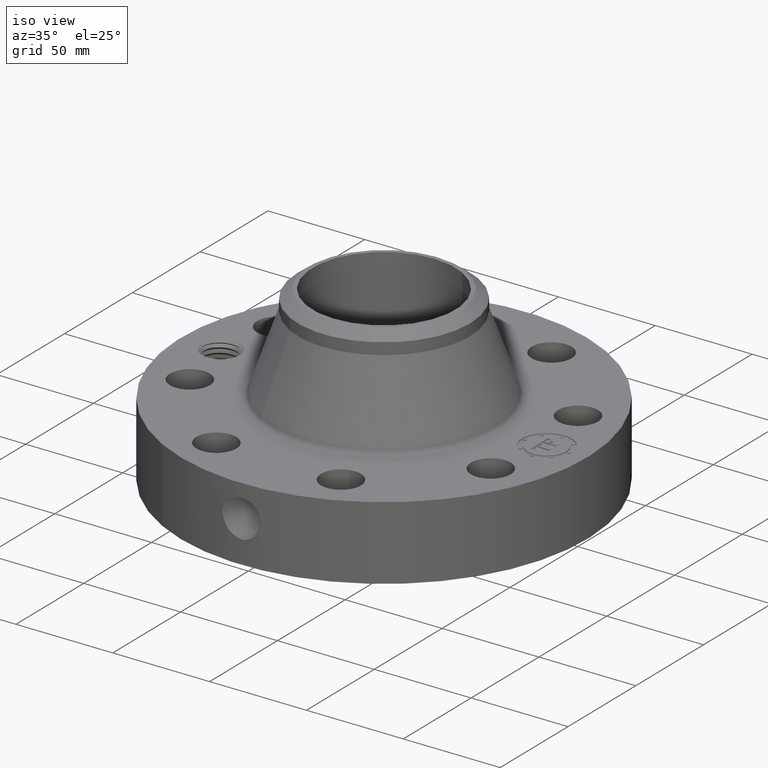
[diagram: clean part render]
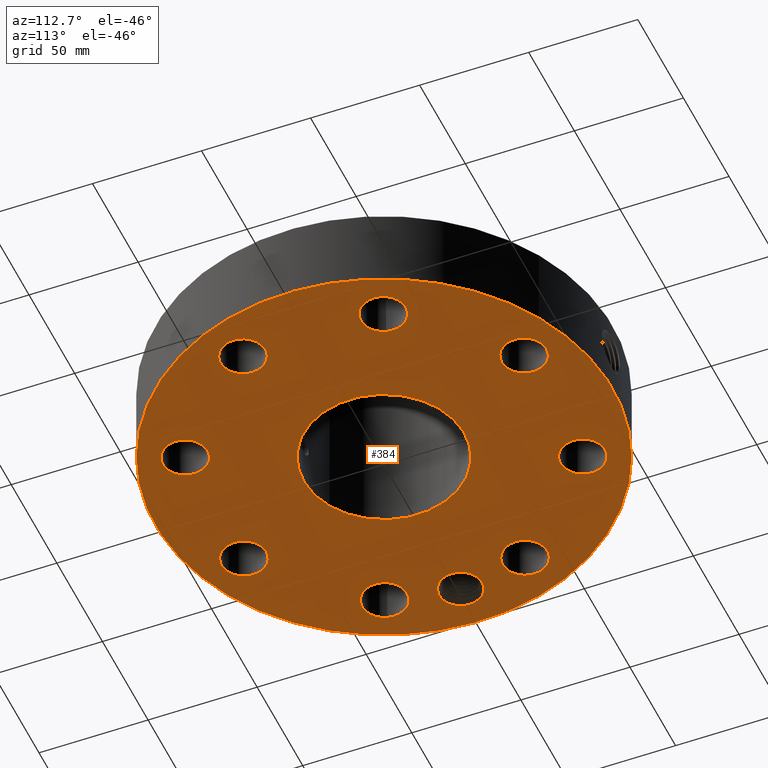
[diagram: tour spotlight — one face highlighted and labeled with its STEP entity id]
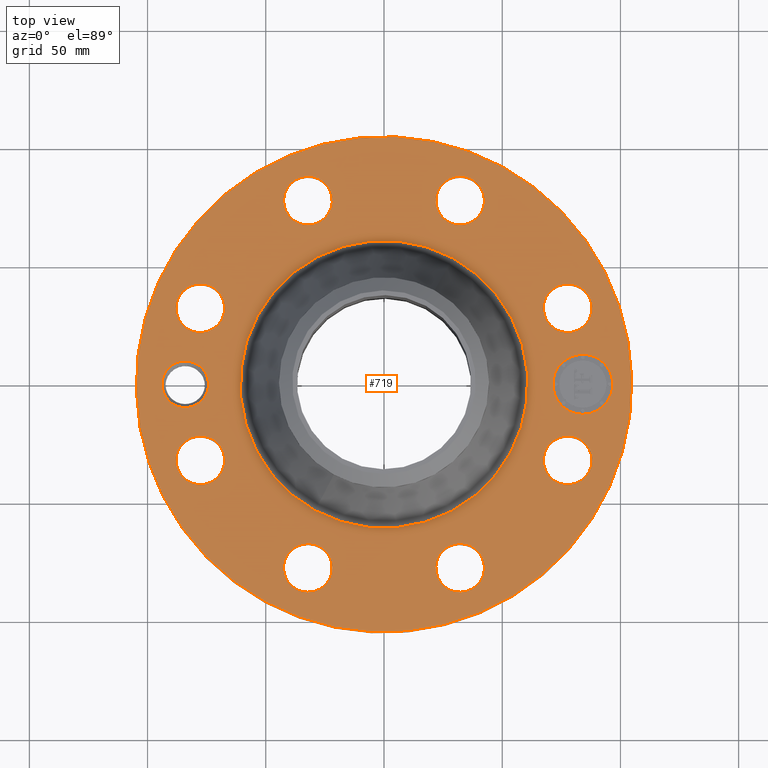
[diagram: tour spotlight — one face highlighted and labeled with its STEP entity id]
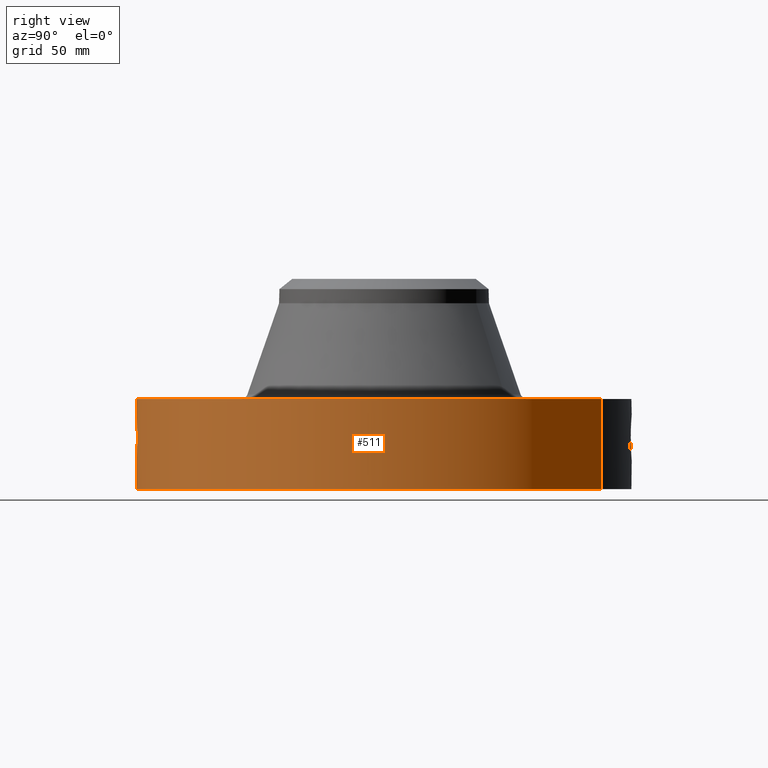
[diagram: tour spotlight — one face highlighted and labeled with its STEP entity id]
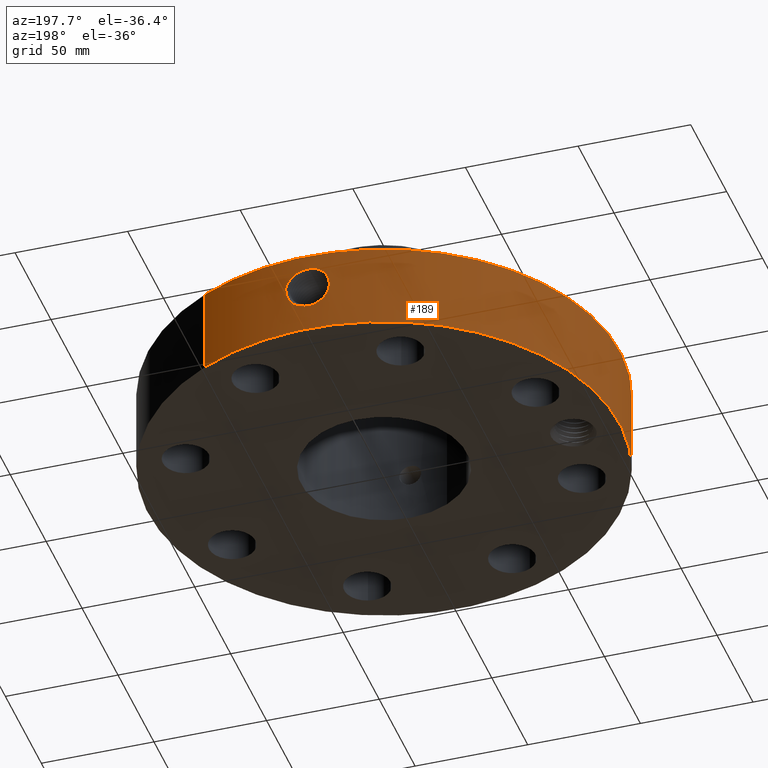
[diagram: tour spotlight — one face highlighted and labeled with its STEP entity id]
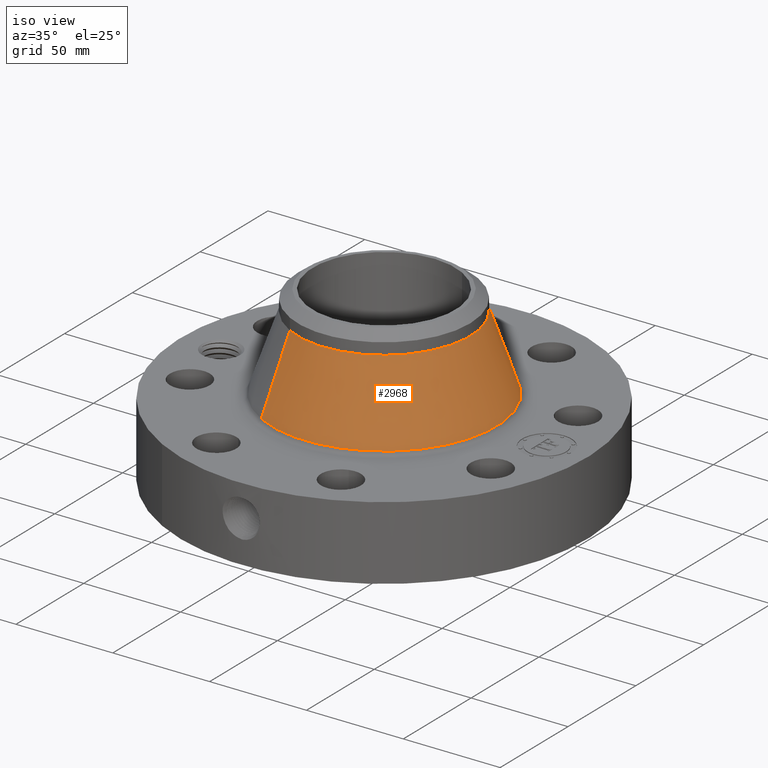
[diagram: tour spotlight — one face highlighted and labeled with its STEP entity id]
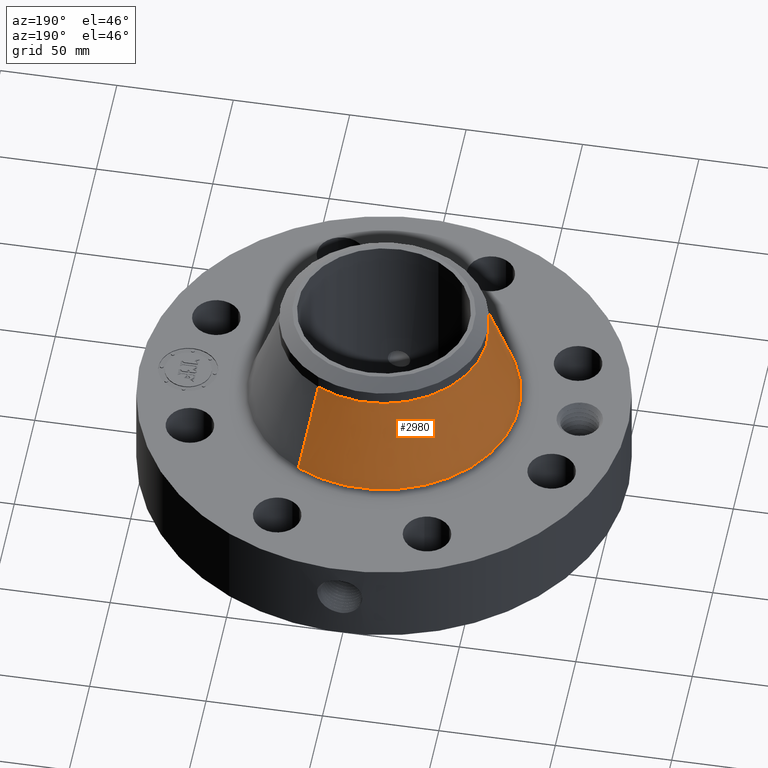
[diagram: tour spotlight — one face highlighted and labeled with its STEP entity id]
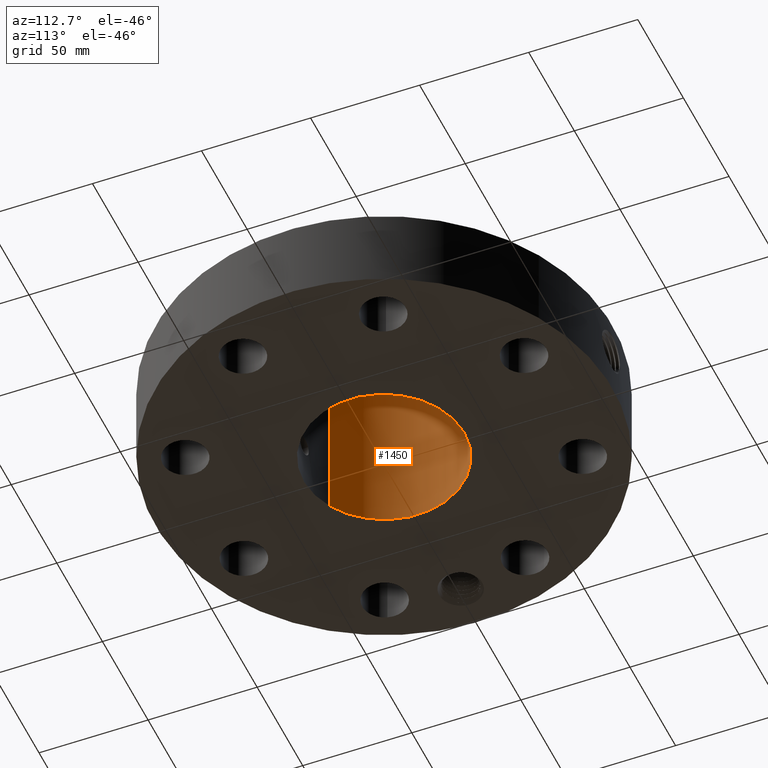
[diagram: tour spotlight — one face highlighted and labeled with its STEP entity id]
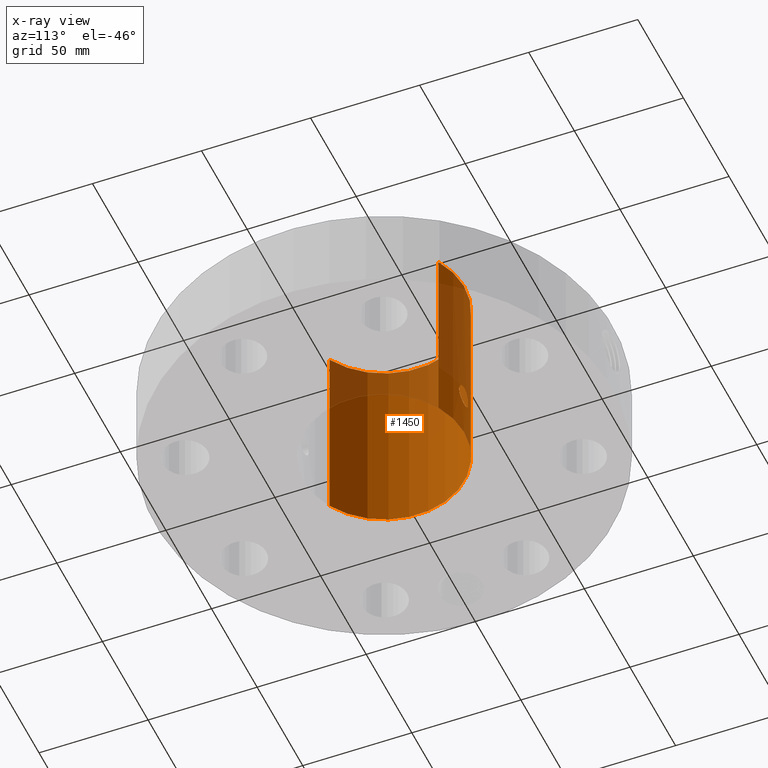
[diagram: x-ray of the same camera — body ghosted, this tour face saturated]
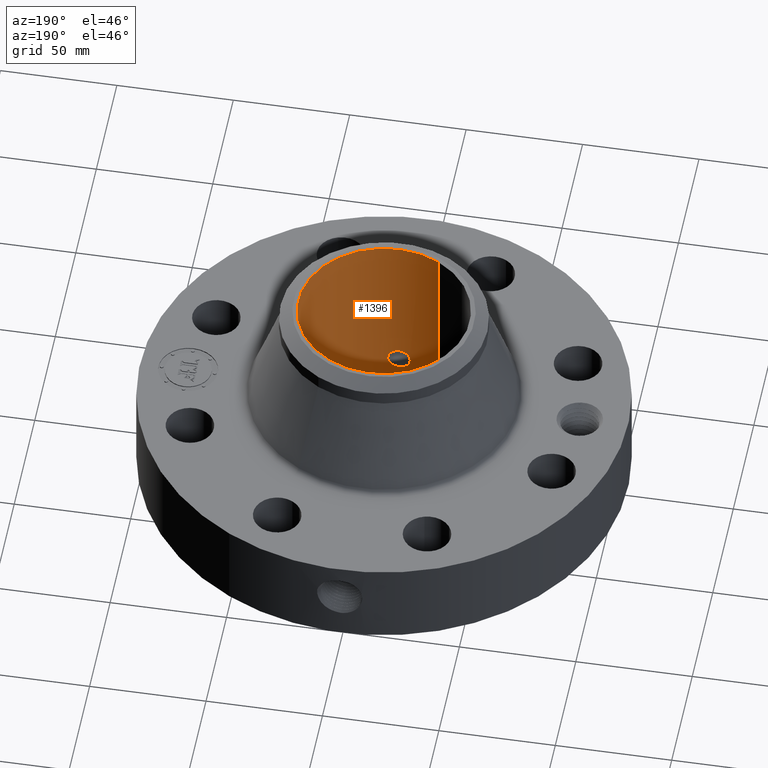
[diagram: tour spotlight — one face highlighted and labeled with its STEP entity id]
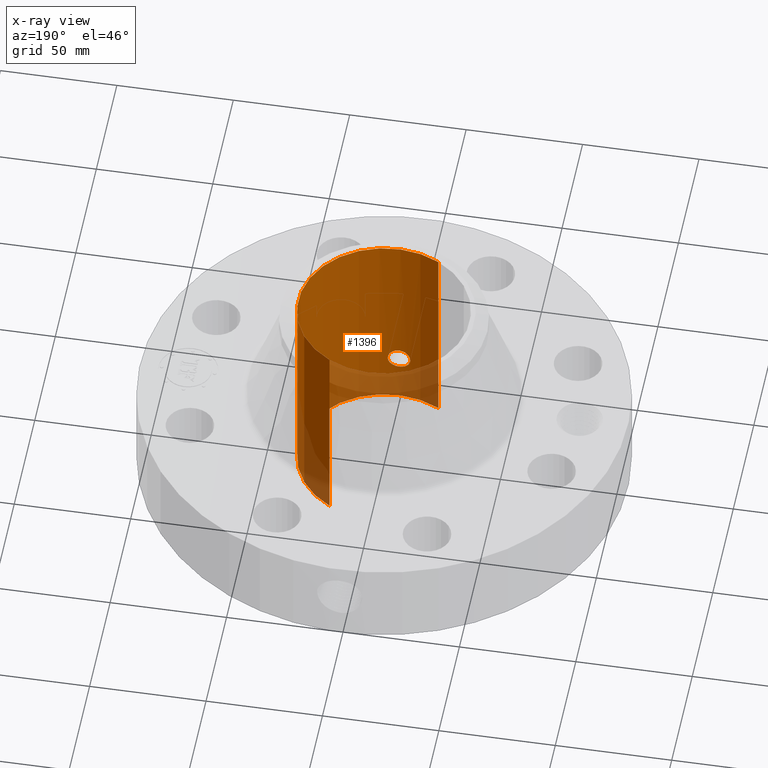
[diagram: x-ray of the same camera — body ghosted, this tour face saturated]
A machine part: a face-by-face anatomy tour. The part has 766 B-rep faces; the first image is the clean iso view, then the 8 largest visible faces are spotlighted one at a time (largest first), each with its STEP entity span.

Face 1 — auxiliary view, entity #384. In plain terms, the highlighted planar face has unit normal (0, 0, -1).
Definition (entity closure, byte-faithful):
#42=AXIS2_PLACEMENT_3D('Circle Axis2P3D',#40,#41,$) ;
#193=AXIS2_PLACEMENT_3D('Plane Axis2P3D',#190,#191,#192) ;
#197=AXIS2_PLACEMENT_3D('Circle Axis2P3D',#195,#196,$) ;
#206=AXIS2_PLACEMENT_3D('Circle Axis2P3D',#204,#205,$) ;
#215=AXIS2_PLACEMENT_3D('Circle Axis2P3D',#213,#214,$) ;
#224=AXIS2_PLACEMENT_3D('Circle Axis2P3D',#222,#223,$) ;
#233=AXIS2_PLACEMENT_3D('Circle Axis2P3D',#231,#232,$) ;
#242=AXIS2_PLACEMENT_3D('Circle Axis2P3D',#240,#241,$) ;
#251=AXIS2_PLACEMENT_3D('Circle Axis2P3D',#249,#250,$) ;
#260=AXIS2_PLACEMENT_3D('Circle Axis2P3D',#258,#259,$) ;
#269=AXIS2_PLACEMENT_3D('Circle Axis2P3D',#267,#268,$) ;
#278=AXIS2_PLACEMENT_3D('Circle Axis2P3D',#276,#277,$) ;
#287=AXIS2_PLACEMENT_3D('Circle Axis2P3D',#285,#286,$) ;
#296=AXIS2_PLACEMENT_3D('Circle Axis2P3D',#294,#295,$) ;
#305=AXIS2_PLACEMENT_3D('Circle Axis2P3D',#303,#304,$) ;
#314=AXIS2_PLACEMENT_3D('Circle Axis2P3D',#312,#313,$) ;
#323=AXIS2_PLACEMENT_3D('Circle Axis2P3D',#321,#322,$) ;
#332=AXIS2_PLACEMENT_3D('Circle Axis2P3D',#330,#331,$) ;
#341=AXIS2_PLACEMENT_3D('Circle Axis2P3D',#339,#340,$) ;
#350=AXIS2_PLACEMENT_3D('Circle Axis2P3D',#348,#349,$) ;
#359=AXIS2_PLACEMENT_3D('Circle Axis2P3D',#357,#358,$) ;
#368=AXIS2_PLACEMENT_3D('Circle Axis2P3D',#366,#367,$) ;
#377=AXIS2_PLACEMENT_3D('Circle Axis2P3D',#375,#376,$) ;
#40=CARTESIAN_POINT('Axis2P3D Location',(0.,0.,0.0600000000002)) ;
#44=CARTESIAN_POINT('Vertex',(-1.97763034675,-3.62002806781,0.0600000000002)) ;
#46=CARTESIAN_POINT('Vertex',(1.97763034675,3.62002806781,0.0600000000002)) ;
#190=CARTESIAN_POINT('Axis2P3D Location',(0.,1.45000000001,0.0600000000002)) ;
#195=CARTESIAN_POINT('Axis2P3D Location',(0.,0.,0.0600000000002)) ;
#204=CARTESIAN_POINT('Axis2P3D Location',(-3.31000000001,-5.59482469102E-016,0.0600000000002)) ;
#208=CARTESIAN_POINT('Vertex',(-2.96938826818,-0.186077037172,0.0600000000002)) ;
#210=CARTESIAN_POINT('Vertex',(-3.65061173185,0.186077037172,0.0600000000002)) ;
#213=CARTESIAN_POINT('Axis2P3D Location',(-3.31000000001,-5.59482469102E-016,0.0600000000002)) ;
#222=CARTESIAN_POINT('Axis2P3D Location',(3.05804125262,-1.26668216113,0.0600000000002)) ;
#226=CARTESIAN_POINT('Vertex',(3.41346219019,-1.46084950427,0.0600000000002)) ;
#228=CARTESIAN_POINT('Vertex',(2.70262031506,-1.072514818,0.0600000000002)) ;
#231=CARTESIAN_POINT('Axis2P3D Location',(3.05804125262,-1.26668216113,0.0600000000002)) ;
#240=CARTESIAN_POINT('Axis2P3D Location',(0.,0.,0.0600000000002)) ;
#244=CARTESIAN_POINT('Vertex',(0.695167030979,1.27249471475,0.0600000000002)) ;
#246=CARTESIAN_POINT('Vertex',(-0.695167030979,-1.27249471475,0.0600000000002)) ;
#249=CARTESIAN_POINT('Axis2P3D Location',(0.,0.,0.0600000000002)) ;
#258=CARTESIAN_POINT('Axis2P3D Location',(1.26668216113,-3.05804125262,0.0600000000002)) ;
#262=CARTESIAN_POINT('Vertex',(1.15265865102,-2.66942365248,0.0600000000002)) ;
#264=CARTESIAN_POINT('Vertex',(1.38070567125,-3.44665885277,0.0600000000002)) ;
#267=CARTESIAN_POINT('Axis2P3D Location',(1.26668216113,-3.05804125262,0.0600000000002)) ;
#276=CARTESIAN_POINT('Axis2P3D Location',(-1.26668216113,-3.05804125262,0.0600000000002)) ;
#280=CARTESIAN_POINT('Vertex',(-1.072514818,-2.70262031506,0.0600000000002)) ;
#282=CARTESIAN_POINT('Vertex',(-1.46084950427,-3.41346219019,0.0600000000002)) ;
#285=CARTESIAN_POINT('Axis2P3D Location',(-1.26668216113,-3.05804125262,0.0600000000002)) ;
#294=CARTESIAN_POINT('Axis2P3D Location',(-3.05804125262,-1.26668216113,0.0600000000002)) ;
#298=CARTESIAN_POINT('Vertex',(-2.66942365248,-1.15265865102,0.0600000000002)) ;
#300=CARTESIAN_POINT('Vertex',(-3.44665885277,-1.38070567125,0.0600000000002)) ;
#303=CARTESIAN_POINT('Axis2P3D Location',(-3.05804125262,-1.26668216113,0.0600000000002)) ;
#312=CARTESIAN_POINT('Axis2P3D Location',(-3.05804125262,1.26668216113,0.0600000000002)) ;
#316=CARTESIAN_POINT('Vertex',(-2.70262031506,1.072514818,0.0600000000002)) ;
#318=CARTESIAN_POINT('Vertex',(-3.41346219019,1.46084950427,0.0600000000002)) ;
#321=CARTESIAN_POINT('Axis2P3D Location',(-3.05804125262,1.26668216113,0.0600000000002)) ;
#330=CARTESIAN_POINT('Axis2P3D Location',(-1.26668216113,3.05804125262,0.0600000000002)) ;
#334=CARTESIAN_POINT('Vertex',(-1.15265865102,2.66942365248,0.0600000000002)) ;
#336=CARTESIAN_POINT('Vertex',(-1.38070567125,3.44665885277,0.0600000000002)) ;
#339=CARTESIAN_POINT('Axis2P3D Location',(-1.26668216113,3.05804125262,0.0600000000002)) ;
#348=CARTESIAN_POINT('Axis2P3D Location',(1.26668216113,3.05804125262,0.0600000000002)) ;
#352=CARTESIAN_POINT('Vertex',(1.072514818,2.70262031506,0.0600000000002)) ;
#354=CARTESIAN_POINT('Vertex',(1.46084950427,3.41346219019,0.0600000000002)) ;
#357=CARTESIAN_POINT('Axis2P3D Location',(1.26668216113,3.05804125262,0.0600000000002)) ;
#366=CARTESIAN_POINT('Axis2P3D Location',(3.05804125262,1.26668216113,0.0600000000002)) ;
#370=CARTESIAN_POINT('Vertex',(2.66942365248,1.15265865102,0.0600000000002)) ;
#372=CARTESIAN_POINT('Vertex',(3.44665885277,1.38070567125,0.0600000000002)) ;
#375=CARTESIAN_POINT('Axis2P3D Location',(3.05804125262,1.26668216113,0.0600000000002)) ;
#41=DIRECTION('Axis2P3D Direction',(0.,0.,-0.0393700787402)) ;
#191=DIRECTION('Axis2P3D Direction',(0.,0.,-0.0393700787402)) ;
#192=DIRECTION('Axis2P3D XDirection',(0.0393700787402,0.,0.)) ;
#196=DIRECTION('Axis2P3D Direction',(0.,0.,-0.0393700787402)) ;
#205=DIRECTION('Axis2P3D Direction',(0.,0.,-0.0393700787402)) ;
#214=DIRECTION('Axis2P3D Direction',(0.,0.,-0.0393700787402)) ;
#223=DIRECTION('Axis2P3D Direction',(0.,0.,-0.0393700787402)) ;
#232=DIRECTION('Axis2P3D Direction',(0.,0.,-0.0393700787402)) ;
#241=DIRECTION('Axis2P3D Direction',(0.,0.,-0.0393700787402)) ;
#250=DIRECTION('Axis2P3D Direction',(0.,0.,-0.0393700787402)) ;
#259=DIRECTION('Axis2P3D Direction',(0.,0.,-0.0393700787402)) ;
#268=DIRECTION('Axis2P3D Direction',(0.,0.,-0.0393700787402)) ;
#277=DIRECTION('Axis2P3D Direction',(0.,0.,-0.0393700787402)) ;
#286=DIRECTION('Axis2P3D Direction',(0.,0.,-0.0393700787402)) ;
#295=DIRECTION('Axis2P3D Direction',(0.,0.,-0.0393700787402)) ;
#304=DIRECTION('Axis2P3D Direction',(0.,0.,-0.0393700787402)) ;
#313=DIRECTION('Axis2P3D Direction',(0.,0.,-0.0393700787402)) ;
#322=DIRECTION('Axis2P3D Direction',(0.,0.,-0.0393700787402)) ;
#331=DIRECTION('Axis2P3D Direction',(0.,0.,-0.0393700787402)) ;
#340=DIRECTION('Axis2P3D Direction',(0.,0.,-0.0393700787402)) ;
#349=DIRECTION('Axis2P3D Direction',(0.,0.,-0.0393700787402)) ;
#358=DIRECTION('Axis2P3D Direction',(0.,0.,-0.0393700787402)) ;
#367=DIRECTION('Axis2P3D Direction',(0.,0.,-0.0393700787402)) ;
#376=DIRECTION('Axis2P3D Direction',(0.,0.,-0.0393700787402)) ;
#201=ORIENTED_EDGE('',*,*,#48,.T.) ;
#202=ORIENTED_EDGE('',*,*,#199,.T.) ;
#219=ORIENTED_EDGE('',*,*,#212,.F.) ;
#220=ORIENTED_EDGE('',*,*,#217,.F.) ;
#237=ORIENTED_EDGE('',*,*,#230,.F.) ;
#238=ORIENTED_EDGE('',*,*,#235,.F.) ;
#255=ORIENTED_EDGE('',*,*,#248,.F.) ;
#256=ORIENTED_EDGE('',*,*,#253,.F.) ;
#273=ORIENTED_EDGE('',*,*,#266,.F.) ;
#274=ORIENTED_EDGE('',*,*,#271,.F.) ;
#291=ORIENTED_EDGE('',*,*,#284,.F.) ;
#292=ORIENTED_EDGE('',*,*,#289,.F.) ;
#309=ORIENTED_EDGE('',*,*,#302,.F.) ;
#310=ORIENTED_EDGE('',*,*,#307,.F.) ;
#327=ORIENTED_EDGE('',*,*,#320,.F.) ;
#328=ORIENTED_EDGE('',*,*,#325,.F.) ;
#345=ORIENTED_EDGE('',*,*,#338,.F.) ;
#346=ORIENTED_EDGE('',*,*,#343,.F.) ;
#363=ORIENTED_EDGE('',*,*,#356,.F.) ;
#364=ORIENTED_EDGE('',*,*,#361,.F.) ;
#381=ORIENTED_EDGE('',*,*,#374,.F.) ;
#382=ORIENTED_EDGE('',*,*,#379,.F.) ;
#221=FACE_BOUND('',#218,.T.) ;
#239=FACE_BOUND('',#236,.T.) ;
#257=FACE_BOUND('',#254,.T.) ;
#275=FACE_BOUND('',#272,.T.) ;
#293=FACE_BOUND('',#290,.T.) ;
#311=FACE_BOUND('',#308,.T.) ;
#329=FACE_BOUND('',#326,.T.) ;
#347=FACE_BOUND('',#344,.T.) ;
#365=FACE_BOUND('',#362,.T.) ;
#383=FACE_BOUND('',#380,.T.) ;
#384=ADVANCED_FACE('PartBody',(#203,#221,#239,#257,#275,#293,#311,#329,#347,#365,#383),#194,.T.) ;
#43=CIRCLE('generated circle',#42,4.12500000002) ;
#198=CIRCLE('generated circle',#197,4.12500000002) ;
#207=CIRCLE('generated circle',#206,0.388125000002) ;
#216=CIRCLE('generated circle',#215,0.388125000002) ;
#225=CIRCLE('generated circle',#224,0.405000000002) ;
#234=CIRCLE('generated circle',#233,0.405000000002) ;
#243=CIRCLE('generated circle',#242,1.45000000001) ;
#252=CIRCLE('generated circle',#251,1.45000000001) ;
#261=CIRCLE('generated circle',#260,0.405000000002) ;
#270=CIRCLE('generated circle',#269,0.405000000002) ;
#279=CIRCLE('generated circle',#278,0.405000000002) ;
#288=CIRCLE('generated circle',#287,0.405000000002) ;
#297=CIRCLE('generated circle',#296,0.405000000002) ;
#306=CIRCLE('generated circle',#305,0.405000000002) ;
#315=CIRCLE('generated circle',#314,0.405000000002) ;
#324=CIRCLE('generated circle',#323,0.405000000002) ;
#333=CIRCLE('generated circle',#332,0.405000000002) ;
#342=CIRCLE('generated circle',#341,0.405000000002) ;
#351=CIRCLE('generated circle',#350,0.405000000002) ;
#360=CIRCLE('generated circle',#359,0.405000000002) ;
#369=CIRCLE('generated circle',#368,0.405000000002) ;
#378=CIRCLE('generated circle',#377,0.405000000002) ;
#48=EDGE_CURVE('',#45,#47,#43,.T.) ;
#199=EDGE_CURVE('',#47,#45,#198,.T.) ;
#212=EDGE_CURVE('',#209,#211,#207,.T.) ;
#217=EDGE_CURVE('',#211,#209,#216,.T.) ;
#230=EDGE_CURVE('',#227,#229,#225,.T.) ;
#235=EDGE_CURVE('',#229,#227,#234,.T.) ;
#248=EDGE_CURVE('',#245,#247,#243,.T.) ;
#253=EDGE_CURVE('',#247,#245,#252,.T.) ;
#266=EDGE_CURVE('',#263,#265,#261,.T.) ;
#271=EDGE_CURVE('',#265,#263,#270,.T.) ;
#284=EDGE_CURVE('',#281,#283,#279,.T.) ;
#289=EDGE_CURVE('',#283,#281,#288,.T.) ;
#302=EDGE_CURVE('',#299,#301,#297,.T.) ;
#307=EDGE_CURVE('',#301,#299,#306,.T.) ;
#320=EDGE_CURVE('',#317,#319,#315,.T.) ;
#325=EDGE_CURVE('',#319,#317,#324,.T.) ;
#338=EDGE_CURVE('',#335,#337,#333,.T.) ;
#343=EDGE_CURVE('',#337,#335,#342,.T.) ;
#356=EDGE_CURVE('',#353,#355,#351,.T.) ;
#361=EDGE_CURVE('',#355,#353,#360,.T.) ;
#374=EDGE_CURVE('',#371,#373,#369,.T.) ;
#379=EDGE_CURVE('',#373,#371,#378,.T.) ;
#200=EDGE_LOOP('',(#201,#202)) ;
#218=EDGE_LOOP('',(#219,#220)) ;
#236=EDGE_LOOP('',(#237,#238)) ;
#254=EDGE_LOOP('',(#255,#256)) ;
#272=EDGE_LOOP('',(#273,#274)) ;
#290=EDGE_LOOP('',(#291,#292)) ;
#308=EDGE_LOOP('',(#309,#310)) ;
#326=EDGE_LOOP('',(#327,#328)) ;
#344=EDGE_LOOP('',(#345,#346)) ;
#362=EDGE_LOOP('',(#363,#364)) ;
#380=EDGE_LOOP('',(#381,#382)) ;
#203=FACE_OUTER_BOUND('',#200,.T.) ;
#194=PLANE('',#193) ;
#45=VERTEX_POINT('',#44) ;
#47=VERTEX_POINT('',#46) ;
#209=VERTEX_POINT('',#208) ;
#211=VERTEX_POINT('',#210) ;
#227=VERTEX_POINT('',#226) ;
#229=VERTEX_POINT('',#228) ;
#245=VERTEX_POINT('',#244) ;
#247=VERTEX_POINT('',#246) ;
#263=VERTEX_POINT('',#262) ;
#265=VERTEX_POINT('',#264) ;
#281=VERTEX_POINT('',#280) ;
#283=VERTEX_POINT('',#282) ;
#299=VERTEX_POINT('',#298) ;
#301=VERTEX_POINT('',#300) ;
#317=VERTEX_POINT('',#316) ;
#319=VERTEX_POINT('',#318) ;
#335=VERTEX_POINT('',#334) ;
#337=VERTEX_POINT('',#336) ;
#353=VERTEX_POINT('',#352) ;
#355=VERTEX_POINT('',#354) ;
#371=VERTEX_POINT('',#370) ;
#373=VERTEX_POINT('',#372) ;

Face 2 — top view, entity #719. In plain terms, the highlighted planar face has unit normal (0, 0, -1).
Definition (entity closure, byte-faithful):
#58=AXIS2_PLACEMENT_3D('Circle Axis2P3D',#56,#57,$) ;
#387=AXIS2_PLACEMENT_3D('Circle Axis2P3D',#385,#386,$) ;
#515=AXIS2_PLACEMENT_3D('Plane Axis2P3D',#512,#513,#514) ;
#523=AXIS2_PLACEMENT_3D('Circle Axis2P3D',#521,#522,$) ;
#532=AXIS2_PLACEMENT_3D('Circle Axis2P3D',#530,#531,$) ;
#541=AXIS2_PLACEMENT_3D('Circle Axis2P3D',#539,#540,$) ;
#550=AXIS2_PLACEMENT_3D('Circle Axis2P3D',#548,#549,$) ;
#559=AXIS2_PLACEMENT_3D('Circle Axis2P3D',#557,#558,$) ;
#568=AXIS2_PLACEMENT_3D('Circle Axis2P3D',#566,#567,$) ;
#577=AXIS2_PLACEMENT_3D('Circle Axis2P3D',#575,#576,$) ;
#586=AXIS2_PLACEMENT_3D('Circle Axis2P3D',#584,#585,$) ;
#595=AXIS2_PLACEMENT_3D('Circle Axis2P3D',#593,#594,$) ;
#604=AXIS2_PLACEMENT_3D('Circle Axis2P3D',#602,#603,$) ;
#613=AXIS2_PLACEMENT_3D('Circle Axis2P3D',#611,#612,$) ;
#622=AXIS2_PLACEMENT_3D('Circle Axis2P3D',#620,#621,$) ;
#631=AXIS2_PLACEMENT_3D('Circle Axis2P3D',#629,#630,$) ;
#640=AXIS2_PLACEMENT_3D('Circle Axis2P3D',#638,#639,$) ;
#649=AXIS2_PLACEMENT_3D('Circle Axis2P3D',#647,#648,$) ;
#658=AXIS2_PLACEMENT_3D('Circle Axis2P3D',#656,#657,$) ;
#667=AXIS2_PLACEMENT_3D('Circle Axis2P3D',#665,#666,$) ;
#676=AXIS2_PLACEMENT_3D('Circle Axis2P3D',#674,#675,$) ;
#685=AXIS2_PLACEMENT_3D('Circle Axis2P3D',#683,#684,$) ;
#694=AXIS2_PLACEMENT_3D('Circle Axis2P3D',#692,#693,$) ;
#703=AXIS2_PLACEMENT_3D('Circle Axis2P3D',#701,#702,$) ;
#712=AXIS2_PLACEMENT_3D('Circle Axis2P3D',#710,#711,$) ;
#53=CARTESIAN_POINT('Vertex',(-1.97763034675,-3.62002806781,1.56000000001)) ;
#56=CARTESIAN_POINT('Axis2P3D Location',(0.,0.,1.56000000001)) ;
#60=CARTESIAN_POINT('Vertex',(1.97763034675,3.62002806781,1.56000000001)) ;
#385=CARTESIAN_POINT('Axis2P3D Location',(0.,0.,1.56000000001)) ;
#512=CARTESIAN_POINT('Axis2P3D Location',(0.,4.12500000002,1.56000000001)) ;
#521=CARTESIAN_POINT('Axis2P3D Location',(-3.31000000001,5.59482469102E-016,1.56000000001)) ;
#525=CARTESIAN_POINT('Vertex',(-3.65061173185,0.186077037172,1.56000000001)) ;
#527=CARTESIAN_POINT('Vertex',(-2.96938826818,-0.186077037172,1.56000000001)) ;
#530=CARTESIAN_POINT('Axis2P3D Location',(-3.31000000001,5.59482469102E-016,1.56000000001)) ;
#539=CARTESIAN_POINT('Axis2P3D Location',(3.05804125262,-1.26668216113,1.56000000001)) ;
#543=CARTESIAN_POINT('Vertex',(2.70262031506,-1.072514818,1.56000000001)) ;
#545=CARTESIAN_POINT('Vertex',(3.41346219019,-1.46084950427,1.56000000001)) ;
#548=CARTESIAN_POINT('Axis2P3D Location',(3.05804125262,-1.26668216113,1.56000000001)) ;
#557=CARTESIAN_POINT('Axis2P3D Location',(0.,0.,1.56000000001)) ;
#561=CARTESIAN_POINT('Vertex',(-1.1482394859,-2.10183828052,1.56000000001)) ;
#563=CARTESIAN_POINT('Vertex',(1.1482394859,2.10183828052,1.56000000001)) ;
#566=CARTESIAN_POINT('Axis2P3D Location',(0.,0.,1.56000000001)) ;
#575=CARTESIAN_POINT('Axis2P3D Location',(1.26668216113,-3.05804125262,1.56000000001)) ;
#579=CARTESIAN_POINT('Vertex',(1.38070567125,-3.44665885277,1.56000000001)) ;
#581=CARTESIAN_POINT('Vertex',(1.15265865102,-2.66942365248,1.56000000001)) ;
#584=CARTESIAN_POINT('Axis2P3D Location',(1.26668216113,-3.05804125262,1.56000000001)) ;
#593=CARTESIAN_POINT('Axis2P3D Location',(-1.26668216113,-3.05804125262,1.56000000001)) ;
#597=CARTESIAN_POINT('Vertex',(-1.46084950427,-3.41346219019,1.56000000001)) ;
#599=CARTESIAN_POINT('Vertex',(-1.072514818,-2.70262031506,1.56000000001)) ;
#602=CARTESIAN_POINT('Axis2P3D Location',(-1.26668216113,-3.05804125262,1.56000000001)) ;
#611=CARTESIAN_POINT('Axis2P3D Location',(-3.05804125262,-1.26668216113,1.56000000001)) ;
#615=CARTESIAN_POINT('Vertex',(-3.44665885277,-1.38070567125,1.56000000001)) ;
#617=CARTESIAN_POINT('Vertex',(-2.66942365248,-1.15265865102,1.56000000001)) ;
#620=CARTESIAN_POINT('Axis2P3D Location',(-3.05804125262,-1.26668216113,1.56000000001)) ;
#629=CARTESIAN_POINT('Axis2P3D Location',(-3.05804125262,1.26668216113,1.56000000001)) ;
#633=CARTESIAN_POINT('Vertex',(-3.41346219019,1.46084950427,1.56000000001)) ;
#635=CARTESIAN_POINT('Vertex',(-2.70262031506,1.072514818,1.56000000001)) ;
#638=CARTESIAN_POINT('Axis2P3D Location',(-3.05804125262,1.26668216113,1.56000000001)) ;
#647=CARTESIAN_POINT('Axis2P3D Location',(-1.26668216113,3.05804125262,1.56000000001)) ;
#651=CARTESIAN_POINT('Vertex',(-1.38070567125,3.44665885277,1.56000000001)) ;
#653=CARTESIAN_POINT('Vertex',(-1.15265865102,2.66942365248,1.56000000001)) ;
#656=CARTESIAN_POINT('Axis2P3D Location',(-1.26668216113,3.05804125262,1.56000000001)) ;
#665=CARTESIAN_POINT('Axis2P3D Location',(1.26668216113,3.05804125262,1.56000000001)) ;
#669=CARTESIAN_POINT('Vertex',(1.46084950427,3.41346219019,1.56000000001)) ;
#671=CARTESIAN_POINT('Vertex',(1.072514818,2.70262031506,1.56000000001)) ;
#674=CARTESIAN_POINT('Axis2P3D Location',(1.26668216113,3.05804125262,1.56000000001)) ;
#683=CARTESIAN_POINT('Axis2P3D Location',(3.05804125262,1.26668216113,1.56000000001)) ;
#687=CARTESIAN_POINT('Vertex',(3.44665885277,1.38070567125,1.56000000001)) ;
#689=CARTESIAN_POINT('Vertex',(2.66942365248,1.15265865102,1.56000000001)) ;
#692=CARTESIAN_POINT('Axis2P3D Location',(3.05804125262,1.26668216113,1.56000000001)) ;
#701=CARTESIAN_POINT('Axis2P3D Location',(3.31000000001,-7.27327209833E-015,1.56000000001)) ;
#705=CARTESIAN_POINT('Vertex',(3.31000000001,0.499999995002,1.56000000001)) ;
#707=CARTESIAN_POINT('Vertex',(3.31000000001,-0.499999995002,1.56000000001)) ;
#710=CARTESIAN_POINT('Axis2P3D Location',(3.31000000001,-7.27327209833E-015,1.56000000001)) ;
#57=DIRECTION('Axis2P3D Direction',(0.,0.,-0.0393700787402)) ;
#386=DIRECTION('Axis2P3D Direction',(0.,0.,-0.0393700787402)) ;
#513=DIRECTION('Axis2P3D Direction',(0.,0.,-0.0393700787402)) ;
#514=DIRECTION('Axis2P3D XDirection',(0.0393700787402,0.,0.)) ;
#522=DIRECTION('Axis2P3D Direction',(0.,0.,-0.0393700787402)) ;
#531=DIRECTION('Axis2P3D Direction',(0.,0.,-0.0393700787402)) ;
#540=DIRECTION('Axis2P3D Direction',(0.,0.,-0.0393700787402)) ;
#549=DIRECTION('Axis2P3D Direction',(0.,0.,-0.0393700787402)) ;
#558=DIRECTION('Axis2P3D Direction',(0.,0.,-0.0393700787402)) ;
#567=DIRECTION('Axis2P3D Direction',(0.,0.,-0.0393700787402)) ;
#576=DIRECTION('Axis2P3D Direction',(0.,0.,-0.0393700787402)) ;
#585=DIRECTION('Axis2P3D Direction',(0.,0.,-0.0393700787402)) ;
#594=DIRECTION('Axis2P3D Direction',(0.,0.,-0.0393700787402)) ;
#603=DIRECTION('Axis2P3D Direction',(0.,0.,-0.0393700787402)) ;
#612=DIRECTION('Axis2P3D Direction',(0.,0.,-0.0393700787402)) ;
#621=DIRECTION('Axis2P3D Direction',(0.,0.,-0.0393700787402)) ;
#630=DIRECTION('Axis2P3D Direction',(0.,0.,-0.0393700787402)) ;
#639=DIRECTION('Axis2P3D Direction',(0.,0.,-0.0393700787402)) ;
#648=DIRECTION('Axis2P3D Direction',(0.,0.,-0.0393700787402)) ;
#657=DIRECTION('Axis2P3D Direction',(0.,0.,-0.0393700787402)) ;
#666=DIRECTION('Axis2P3D Direction',(0.,0.,-0.0393700787402)) ;
#675=DIRECTION('Axis2P3D Direction',(0.,0.,-0.0393700787402)) ;
#684=DIRECTION('Axis2P3D Direction',(0.,0.,-0.0393700787402)) ;
#693=DIRECTION('Axis2P3D Direction',(0.,0.,-0.0393700787402)) ;
#702=DIRECTION('Axis2P3D Direction',(0.,0.,-0.0393700787402)) ;
#711=DIRECTION('Axis2P3D Direction',(0.,0.,-0.0393700787402)) ;
#518=ORIENTED_EDGE('',*,*,#389,.F.) ;
#519=ORIENTED_EDGE('',*,*,#62,.F.) ;
#536=ORIENTED_EDGE('',*,*,#529,.T.) ;
#537=ORIENTED_EDGE('',*,*,#534,.T.) ;
#554=ORIENTED_EDGE('',*,*,#547,.T.) ;
#555=ORIENTED_EDGE('',*,*,#552,.T.) ;
#572=ORIENTED_EDGE('',*,*,#565,.T.) ;
#573=ORIENTED_EDGE('',*,*,#570,.T.) ;
#590=ORIENTED_EDGE('',*,*,#583,.T.) ;
#591=ORIENTED_EDGE('',*,*,#588,.T.) ;
#608=ORIENTED_EDGE('',*,*,#601,.T.) ;
#609=ORIENTED_EDGE('',*,*,#606,.T.) ;
#626=ORIENTED_EDGE('',*,*,#619,.T.) ;
#627=ORIENTED_EDGE('',*,*,#624,.T.) ;
#644=ORIENTED_EDGE('',*,*,#637,.T.) ;
#645=ORIENTED_EDGE('',*,*,#642,.T.) ;
#662=ORIENTED_EDGE('',*,*,#655,.T.) ;
#663=ORIENTED_EDGE('',*,*,#660,.T.) ;
#680=ORIENTED_EDGE('',*,*,#673,.T.) ;
#681=ORIENTED_EDGE('',*,*,#678,.T.) ;
#698=ORIENTED_EDGE('',*,*,#691,.T.) ;
#699=ORIENTED_EDGE('',*,*,#696,.T.) ;
#716=ORIENTED_EDGE('',*,*,#709,.T.) ;
#717=ORIENTED_EDGE('',*,*,#714,.T.) ;
#538=FACE_BOUND('',#535,.T.) ;
#556=FACE_BOUND('',#553,.T.) ;
#574=FACE_BOUND('',#571,.T.) ;
#592=FACE_BOUND('',#589,.T.) ;
#610=FACE_BOUND('',#607,.T.) ;
#628=FACE_BOUND('',#625,.T.) ;
#646=FACE_BOUND('',#643,.T.) ;
#664=FACE_BOUND('',#661,.T.) ;
#682=FACE_BOUND('',#679,.T.) ;
#700=FACE_BOUND('',#697,.T.) ;
#718=FACE_BOUND('',#715,.T.) ;
#719=ADVANCED_FACE('PartBody',(#520,#538,#556,#574,#592,#610,#628,#646,#664,#682,#700,#718),#516,.F.) ;
#59=CIRCLE('generated circle',#58,4.12500000002) ;
#388=CIRCLE('generated circle',#387,4.12500000002) ;
#524=CIRCLE('generated circle',#523,0.388125000002) ;
#533=CIRCLE('generated circle',#532,0.388125000002) ;
#542=CIRCLE('generated circle',#541,0.405000000002) ;
#551=CIRCLE('generated circle',#550,0.405000000002) ;
#560=CIRCLE('generated circle',#559,2.39503195688) ;
#569=CIRCLE('generated circle',#568,2.39503195688) ;
#578=CIRCLE('generated circle',#577,0.405000000002) ;
#587=CIRCLE('generated circle',#586,0.405000000002) ;
#596=CIRCLE('generated circle',#595,0.405000000002) ;
#605=CIRCLE('generated circle',#604,0.405000000002) ;
#614=CIRCLE('generated circle',#613,0.405000000002) ;
#623=CIRCLE('generated circle',#622,0.405000000002) ;
#632=CIRCLE('generated circle',#631,0.405000000002) ;
#641=CIRCLE('generated circle',#640,0.405000000002) ;
#650=CIRCLE('generated circle',#649,0.405000000002) ;
#659=CIRCLE('generated circle',#658,0.405000000002) ;
#668=CIRCLE('generated circle',#667,0.405000000002) ;
#677=CIRCLE('generated circle',#676,0.405000000002) ;
#686=CIRCLE('generated circle',#685,0.405000000002) ;
#695=CIRCLE('generated circle',#694,0.405000000002) ;
#704=CIRCLE('generated circle',#703,0.499999995002) ;
#713=CIRCLE('generated circle',#712,0.499999995002) ;
#62=EDGE_CURVE('',#54,#61,#59,.T.) ;
#389=EDGE_CURVE('',#61,#54,#388,.T.) ;
#529=EDGE_CURVE('',#526,#528,#524,.T.) ;
#534=EDGE_CURVE('',#528,#526,#533,.T.) ;
#547=EDGE_CURVE('',#544,#546,#542,.T.) ;
#552=EDGE_CURVE('',#546,#544,#551,.T.) ;
#565=EDGE_CURVE('',#562,#564,#560,.T.) ;
#570=EDGE_CURVE('',#564,#562,#569,.T.) ;
#583=EDGE_CURVE('',#580,#582,#578,.T.) ;
#588=EDGE_CURVE('',#582,#580,#587,.T.) ;
#601=EDGE_CURVE('',#598,#600,#596,.T.) ;
#606=EDGE_CURVE('',#600,#598,#605,.T.) ;
#619=EDGE_CURVE('',#616,#618,#614,.T.) ;
#624=EDGE_CURVE('',#618,#616,#623,.T.) ;
#637=EDGE_CURVE('',#634,#636,#632,.T.) ;
#642=EDGE_CURVE('',#636,#634,#641,.T.) ;
#655=EDGE_CURVE('',#652,#654,#650,.T.) ;
#660=EDGE_CURVE('',#654,#652,#659,.T.) ;
#673=EDGE_CURVE('',#670,#672,#668,.T.) ;
#678=EDGE_CURVE('',#672,#670,#677,.T.) ;
#691=EDGE_CURVE('',#688,#690,#686,.T.) ;
#696=EDGE_CURVE('',#690,#688,#695,.T.) ;
#709=EDGE_CURVE('',#706,#708,#704,.T.) ;
#714=EDGE_CURVE('',#708,#706,#713,.T.) ;
#517=EDGE_LOOP('',(#518,#519)) ;
#535=EDGE_LOOP('',(#536,#537)) ;
#553=EDGE_LOOP('',(#554,#555)) ;
#571=EDGE_LOOP('',(#572,#573)) ;
#589=EDGE_LOOP('',(#590,#591)) ;
#607=EDGE_LOOP('',(#608,#609)) ;
#625=EDGE_LOOP('',(#626,#627)) ;
#643=EDGE_LOOP('',(#644,#645)) ;
#661=EDGE_LOOP('',(#662,#663)) ;
#679=EDGE_LOOP('',(#680,#681)) ;
#697=EDGE_LOOP('',(#698,#699)) ;
#715=EDGE_LOOP('',(#716,#717)) ;
#520=FACE_OUTER_BOUND('',#517,.T.) ;
#516=PLANE('',#515) ;
#54=VERTEX_POINT('',#53) ;
#61=VERTEX_POINT('',#60) ;
#526=VERTEX_POINT('',#525) ;
#528=VERTEX_POINT('',#527) ;
#544=VERTEX_POINT('',#543) ;
#546=VERTEX_POINT('',#545) ;
#562=VERTEX_POINT('',#561) ;
#564=VERTEX_POINT('',#563) ;
#580=VERTEX_POINT('',#579) ;
#582=VERTEX_POINT('',#581) ;
#598=VERTEX_POINT('',#597) ;
#600=VERTEX_POINT('',#599) ;
#616=VERTEX_POINT('',#615) ;
#618=VERTEX_POINT('',#617) ;
#634=VERTEX_POINT('',#633) ;
#636=VERTEX_POINT('',#635) ;
#652=VERTEX_POINT('',#651) ;
#654=VERTEX_POINT('',#653) ;
#670=VERTEX_POINT('',#669) ;
#672=VERTEX_POINT('',#671) ;
#688=VERTEX_POINT('',#687) ;
#690=VERTEX_POINT('',#689) ;
#706=VERTEX_POINT('',#705) ;
#708=VERTEX_POINT('',#707) ;

Face 3 — right view, entity #511. In plain terms, the highlighted cylindrical surface (partial cylindrical patch) has radius 104.775 mm, axis along (0, 0, -1).
Definition (entity closure, byte-faithful):
#38=AXIS2_PLACEMENT_3D('Cylinder Axis2P3D',#35,#36,#37) ;
#197=AXIS2_PLACEMENT_3D('Circle Axis2P3D',#195,#196,$) ;
#387=AXIS2_PLACEMENT_3D('Circle Axis2P3D',#385,#386,$) ;
#35=CARTESIAN_POINT('Axis2P3D Location',(0.,0.,1.81000000001)) ;
#44=CARTESIAN_POINT('Vertex',(-1.97763034675,-3.62002806781,0.0600000000002)) ;
#46=CARTESIAN_POINT('Vertex',(1.97763034675,3.62002806781,0.0600000000002)) ;
#49=CARTESIAN_POINT('Line Origine',(-1.97763034675,-3.62002806781,0.810000000003)) ;
#53=CARTESIAN_POINT('Vertex',(-1.97763034675,-3.62002806781,1.56000000001)) ;
#60=CARTESIAN_POINT('Vertex',(1.97763034675,3.62002806781,1.56000000001)) ;
#63=CARTESIAN_POINT('Line Origine',(1.97763034675,3.62002806781,0.810000000003)) ;
#195=CARTESIAN_POINT('Axis2P3D Location',(0.,0.,0.0600000000002)) ;
#385=CARTESIAN_POINT('Axis2P3D Location',(0.,0.,1.56000000001)) ;
#397=CARTESIAN_POINT('Control Point',(0.0708258696512,-4.12439191837,1.28694445408)) ;
#398=CARTESIAN_POINT('Control Point',(0.0477756042592,-4.12478774765,1.29166264764)) ;
#399=CARTESIAN_POINT('Control Point',(0.0242493397436,-4.12499584526,1.29407066085)) ;
#400=CARTESIAN_POINT('Control Point',(0.000717367785542,-4.12499993764,1.29411849621)) ;
#401=CARTESIAN_POINT('Vertex',(0.0707931255285,-4.12439274845,1.28695147494)) ;
#403=CARTESIAN_POINT('Vertex',(0.00071711567586,-4.12499993768,1.29411850626)) ;
#407=CARTESIAN_POINT('Control Point',(0.0707929875436,-4.12439248291,1.28695080973)) ;
#408=CARTESIAN_POINT('Control Point',(0.105534403896,-4.12379616511,1.28076532583)) ;
#409=CARTESIAN_POINT('Control Point',(0.13924072996,-4.12276500955,1.26858978299)) ;
#410=CARTESIAN_POINT('Control Point',(0.170106274733,-4.12149109612,1.25141106894)) ;
#411=CARTESIAN_POINT('Vertex',(0.170106274733,-4.12149109612,1.25141106894)) ;
#415=CARTESIAN_POINT('Control Point',(0.170106274733,-4.12149109612,1.25141106894)) ;
#416=CARTESIAN_POINT('Control Point',(0.189944744256,-4.1206723031,1.24036965022)) ;
#417=CARTESIAN_POINT('Control Point',(0.208623588128,-4.11975702947,1.22728178951)) ;
#418=CARTESIAN_POINT('Control Point',(0.225825151081,-4.11881390709,1.21251850282)) ;
#419=CARTESIAN_POINT('Vertex',(0.225825362099,-4.11881409519,1.21251874593)) ;
#423=CARTESIAN_POINT('Control Point',(0.351866700326,-4.10996530707,0.975464361167)) ;
#424=CARTESIAN_POINT('Control Point',(0.3449788673,-4.11055499552,1.0439862787)) ;
#425=CARTESIAN_POINT('Control Point',(0.320314482862,-4.11268399222,1.11077407828)) ;
#426=CARTESIAN_POINT('Control Point',(0.278761447418,-4.1159117292,1.16853984638)) ;
#427=CARTESIAN_POINT('Control Point',(0.225809776391,-4.11881475002,1.21253161272)) ;
#428=CARTESIAN_POINT('Vertex',(0.351866537775,-4.10996536585,0.975466055539)) ;
#432=CARTESIAN_POINT('Control Point',(0.0285867200519,-4.12490094421,0.531014415425)) ;
#433=CARTESIAN_POINT('Control Point',(0.0731508323982,-4.12459210242,0.53676262059)) ;
#434=CARTESIAN_POINT('Control Point',(0.116605911808,-4.12368909709,0.54961040193)) ;
#435=CARTESIAN_POINT('Control Point',(0.157313656179,-4.12226228881,0.569187265493)) ;
#436=CARTESIAN_POINT('Control Point',(0.218412033148,-4.11943105988,0.610865799678)) ;
#437=CARTESIAN_POINT('Control Point',(0.267085984174,-4.11640755897,0.664664117652)) ;
#438=CARTESIAN_POINT('Control Point',(0.284316422769,-4.11523449191,0.687667885472)) ;
#439=CARTESIAN_POINT('Control Point',(0.325710071672,-4.11223072828,0.754664964781)) ;
#440=CARTESIAN_POINT('Control Point',(0.349728178373,-4.11016858959,0.82919413644)) ;
#441=CARTESIAN_POINT('Control Point',(0.357709929823,-4.10945203007,0.878220924905)) ;
#442=CARTESIAN_POINT('Control Point',(0.358385651065,-4.10940720015,0.927417505238)) ;
#443=CARTESIAN_POINT('Control Point',(0.351866458174,-4.1099653278,0.975466036918)) ;
#444=CARTESIAN_POINT('Vertex',(0.0285867200519,-4.12490094421,0.531014415425)) ;
#448=CARTESIAN_POINT('Control Point',(0.0285867200519,-4.12490094421,0.531014415425)) ;
#449=CARTESIAN_POINT('Control Point',(0.0190504033792,-4.12496703356,0.530850653595)) ;
#450=CARTESIAN_POINT('Control Point',(0.00951371795879,-4.12500000631,0.530970811253)) ;
#451=CARTESIAN_POINT('Control Point',(-2.72878354221E-006,-4.12500000002,0.531374667805)) ;
#452=CARTESIAN_POINT('Vertex',(-2.72878353897E-006,-4.12500000002,0.531374667805)) ;
#456=CARTESIAN_POINT('Control Point',(-0.195057006855,-4.12038563295,0.582957545943)) ;
#457=CARTESIAN_POINT('Control Point',(-0.134929810893,-4.12323202451,0.551663787966)) ;
#458=CARTESIAN_POINT('Control Point',(-0.0678695334323,-4.12499995512,0.534254782757)) ;
#459=CARTESIAN_POINT('Control Point',(-2.72878354222E-006,-4.12500000002,0.531374667805)) ;
#460=CARTESIAN_POINT('Vertex',(-0.195057006855,-4.12038563295,0.582957545943)) ;
#464=CARTESIAN_POINT('Control Point',(-0.277741653318,-4.11563902379,0.638820641839)) ;
#465=CARTESIAN_POINT('Control Point',(-0.252440207963,-4.11734647802,0.61703728036)) ;
#466=CARTESIAN_POINT('Control Point',(-0.224590631532,-4.11898752584,0.59832859493)) ;
#467=CARTESIAN_POINT('Control Point',(-0.195057006855,-4.12038563295,0.582957545943)) ;
#468=CARTESIAN_POINT('Vertex',(-0.277741653318,-4.11563902379,0.638820641839)) ;
#472=CARTESIAN_POINT('Control Point',(-0.277741653318,-4.11563902379,0.638820641839)) ;
#473=CARTESIAN_POINT('Control Point',(-0.346084614523,-4.11102693635,0.706500366901)) ;
#474=CARTESIAN_POINT('Control Point',(-0.39250322874,-4.1063284801,0.795167285711)) ;
#475=CARTESIAN_POINT('Control Point',(-0.412343746851,-4.10434301328,0.891847251894)) ;
#476=CARTESIAN_POINT('Control Point',(-0.406546637881,-4.1049171528,0.98790255717)) ;
#477=CARTESIAN_POINT('Vertex',(-0.406546637881,-4.1049171528,0.98790255717)) ;
#481=CARTESIAN_POINT('Control Point',(-0.406546637881,-4.1049171528,0.98790255717)) ;
#482=CARTESIAN_POINT('Control Point',(-0.39669630803,-4.10589271901,1.03992594033)) ;
#483=CARTESIAN_POINT('Control Point',(-0.37710779109,-4.10780290855,1.08979808973)) ;
#484=CARTESIAN_POINT('Control Point',(-0.348680840748,-4.11043683845,1.13488020746)) ;
#485=CARTESIAN_POINT('Control Point',(-0.272595100943,-4.11655133167,1.21936561238)) ;
#486=CARTESIAN_POINT('Control Point',(-0.173676685762,-4.1218983007,1.27163748858)) ;
#487=CARTESIAN_POINT('Control Point',(-0.116496598124,-4.12398624661,1.28950778802)) ;
#488=CARTESIAN_POINT('Control Point',(-0.0578342871683,-4.12500036264,1.29698939342)) ;
#489=CARTESIAN_POINT('Control Point',(2.58579355023E-005,-4.12499999994,1.29415298439)) ;
#490=CARTESIAN_POINT('Vertex',(2.58579355095E-005,-4.12499999994,1.29415298439)) ;
#494=CARTESIAN_POINT('Control Point',(0.000717115663548,-4.12499993768,1.29411850625)) ;
#495=CARTESIAN_POINT('Control Point',(0.000371509656305,-4.12499999777,1.29413603992)) ;
#496=CARTESIAN_POINT('Control Point',(2.58579439201E-005,-4.12499999994,1.29415298439)) ;
#36=DIRECTION('Axis2P3D Direction',(0.,0.,-0.0393700787402)) ;
#37=DIRECTION('Axis2P3D XDirection',(0.0188750212049,0.0345504945626,0.)) ;
#50=DIRECTION('Vector Direction',(0.,0.,-0.0393700787402)) ;
#64=DIRECTION('Vector Direction',(0.,0.,-0.0393700787402)) ;
#196=DIRECTION('Axis2P3D Direction',(0.,0.,-0.0393700787402)) ;
#386=DIRECTION('Axis2P3D Direction',(0.,0.,-0.0393700787402)) ;
#51=VECTOR('Line Direction',#50,0.0393700787402) ;
#65=VECTOR('Line Direction',#64,0.0393700787402) ;
#391=ORIENTED_EDGE('',*,*,#199,.F.) ;
#392=ORIENTED_EDGE('',*,*,#67,.T.) ;
#393=ORIENTED_EDGE('',*,*,#389,.T.) ;
#394=ORIENTED_EDGE('',*,*,#55,.F.) ;
#499=ORIENTED_EDGE('',*,*,#405,.F.) ;
#500=ORIENTED_EDGE('',*,*,#413,.T.) ;
#501=ORIENTED_EDGE('',*,*,#421,.T.) ;
#502=ORIENTED_EDGE('',*,*,#430,.F.) ;
#503=ORIENTED_EDGE('',*,*,#446,.F.) ;
#504=ORIENTED_EDGE('',*,*,#454,.T.) ;
#505=ORIENTED_EDGE('',*,*,#462,.F.) ;
#506=ORIENTED_EDGE('',*,*,#470,.F.) ;
#507=ORIENTED_EDGE('',*,*,#479,.T.) ;
#508=ORIENTED_EDGE('',*,*,#492,.T.) ;
#509=ORIENTED_EDGE('',*,*,#497,.F.) ;
#510=FACE_BOUND('',#498,.T.) ;
#511=ADVANCED_FACE('PartBody',(#395,#510),#39,.T.) ;
#396=B_SPLINE_CURVE_WITH_KNOTS('',3,(#397,#398,#399,#400),.UNSPECIFIED.,.F.,.U.,(4,4),(3.91174753718,6.52241187089),.UNSPECIFIED.) ;
#406=B_SPLINE_CURVE_WITH_KNOTS('',3,(#407,#408,#409,#410),.UNSPECIFIED.,.F.,.U.,(4,4),(0.,3.96493926525),.UNSPECIFIED.) ;
#414=B_SPLINE_CURVE_WITH_KNOTS('',3,(#415,#416,#417,#418),.UNSPECIFIED.,.F.,.U.,(4,4),(0.,2.5484185643),.UNSPECIFIED.) ;
#422=B_SPLINE_CURVE_WITH_KNOTS('',4,(#423,#424,#425,#426,#427),.UNSPECIFIED.,.F.,.U.,(5,5),(14.8279676915,25.0223849784),.UNSPECIFIED.) ;
#431=B_SPLINE_CURVE_WITH_KNOTS('',5,(#432,#433,#434,#435,#436,#437,#438,#439,#440,#441,#442,#443),.UNSPECIFIED.,.F.,.U.,(6,3,3,6),(0.,7.80985906714,12.9724794099,22.057518581),.UNSPECIFIED.) ;
#447=B_SPLINE_CURVE_WITH_KNOTS('',3,(#448,#449,#450,#451),.UNSPECIFIED.,.F.,.U.,(4,4),(0.,0.994579949519),.UNSPECIFIED.) ;
#455=B_SPLINE_CURVE_WITH_KNOTS('',3,(#456,#457,#458,#459),.UNSPECIFIED.,.F.,.U.,(4,4),(0.,7.09287457953),.UNSPECIFIED.) ;
#463=B_SPLINE_CURVE_WITH_KNOTS('',3,(#464,#465,#466,#467),.UNSPECIFIED.,.F.,.U.,(4,4),(0.,3.48391923032),.UNSPECIFIED.) ;
#471=B_SPLINE_CURVE_WITH_KNOTS('',4,(#472,#473,#474,#475,#476),.UNSPECIFIED.,.F.,.U.,(5,5),(0.,13.3803771445),.UNSPECIFIED.) ;
#480=B_SPLINE_CURVE_WITH_KNOTS('',5,(#481,#482,#483,#484,#485,#486,#487,#488,#489),.UNSPECIFIED.,.F.,.U.,(6,3,6),(0.,9.20582229262,20.0210803145),.UNSPECIFIED.) ;
#493=B_SPLINE_CURVE_WITH_KNOTS('',2,(#494,#495,#496),.UNSPECIFIED.,.F.,.U.,(3,3),(1.12444292039,1.15028670438),.UNSPECIFIED.) ;
#198=CIRCLE('generated circle',#197,4.12500000002) ;
#388=CIRCLE('generated circle',#387,4.12500000002) ;
#39=CYLINDRICAL_SURFACE('generated cylinder',#38,4.12500000002) ;
#55=EDGE_CURVE('',#45,#54,#52,.F.) ;
#67=EDGE_CURVE('',#47,#61,#66,.F.) ;
#199=EDGE_CURVE('',#47,#45,#198,.T.) ;
#389=EDGE_CURVE('',#61,#54,#388,.T.) ;
#405=EDGE_CURVE('',#402,#404,#396,.T.) ;
#413=EDGE_CURVE('',#402,#412,#406,.T.) ;
#421=EDGE_CURVE('',#412,#420,#414,.T.) ;
#430=EDGE_CURVE('',#429,#420,#422,.T.) ;
#446=EDGE_CURVE('',#445,#429,#431,.T.) ;
#454=EDGE_CURVE('',#445,#453,#447,.T.) ;
#462=EDGE_CURVE('',#461,#453,#455,.T.) ;
#470=EDGE_CURVE('',#469,#461,#463,.T.) ;
#479=EDGE_CURVE('',#469,#478,#471,.T.) ;
#492=EDGE_CURVE('',#478,#491,#480,.T.) ;
#497=EDGE_CURVE('',#404,#491,#493,.T.) ;
#390=EDGE_LOOP('',(#391,#392,#393,#394)) ;
#498=EDGE_LOOP('',(#499,#500,#501,#502,#503,#504,#505,#506,#507,#508,#509)) ;
#395=FACE_OUTER_BOUND('',#390,.T.) ;
#52=LINE('Line',#49,#51) ;
#66=LINE('Line',#63,#65) ;
#45=VERTEX_POINT('',#44) ;
#47=VERTEX_POINT('',#46) ;
#54=VERTEX_POINT('',#53) ;
#61=VERTEX_POINT('',#60) ;
#402=VERTEX_POINT('',#401) ;
#404=VERTEX_POINT('',#403) ;
#412=VERTEX_POINT('',#411) ;
#420=VERTEX_POINT('',#419) ;
#429=VERTEX_POINT('',#428) ;
#445=VERTEX_POINT('',#444) ;
#453=VERTEX_POINT('',#452) ;
#461=VERTEX_POINT('',#460) ;
#469=VERTEX_POINT('',#468) ;
#478=VERTEX_POINT('',#477) ;
#491=VERTEX_POINT('',#490) ;

Face 4 — auxiliary view, entity #189. In plain terms, the highlighted cylindrical surface (partial cylindrical patch) has radius 104.775 mm, axis along (0, 0, -1).
Definition (entity closure, byte-faithful):
#38=AXIS2_PLACEMENT_3D('Cylinder Axis2P3D',#35,#36,#37) ;
#42=AXIS2_PLACEMENT_3D('Circle Axis2P3D',#40,#41,$) ;
#58=AXIS2_PLACEMENT_3D('Circle Axis2P3D',#56,#57,$) ;
#35=CARTESIAN_POINT('Axis2P3D Location',(0.,0.,1.81000000001)) ;
#40=CARTESIAN_POINT('Axis2P3D Location',(0.,0.,0.0600000000002)) ;
#44=CARTESIAN_POINT('Vertex',(-1.97763034675,-3.62002806781,0.0600000000002)) ;
#46=CARTESIAN_POINT('Vertex',(1.97763034675,3.62002806781,0.0600000000002)) ;
#49=CARTESIAN_POINT('Line Origine',(-1.97763034675,-3.62002806781,0.810000000003)) ;
#53=CARTESIAN_POINT('Vertex',(-1.97763034675,-3.62002806781,1.56000000001)) ;
#56=CARTESIAN_POINT('Axis2P3D Location',(0.,0.,1.56000000001)) ;
#60=CARTESIAN_POINT('Vertex',(1.97763034675,3.62002806781,1.56000000001)) ;
#63=CARTESIAN_POINT('Line Origine',(1.97763034675,3.62002806781,0.810000000003)) ;
#75=CARTESIAN_POINT('Control Point',(-0.0708258696636,4.12439191837,1.28694445408)) ;
#76=CARTESIAN_POINT('Control Point',(-0.0477756042701,4.12478774765,1.29166264764)) ;
#77=CARTESIAN_POINT('Control Point',(-0.0242493397509,4.12499584526,1.29407066085)) ;
#78=CARTESIAN_POINT('Control Point',(-0.000717367785608,4.12499993764,1.29411849621)) ;
#79=CARTESIAN_POINT('Vertex',(-0.0707931255285,4.12439274845,1.28695147494)) ;
#81=CARTESIAN_POINT('Vertex',(-0.000717115675859,4.12499993768,1.29411850626)) ;
#85=CARTESIAN_POINT('Control Point',(-0.0707929875436,4.12439248291,1.28695080973)) ;
#86=CARTESIAN_POINT('Control Point',(-0.105534403893,4.12379616511,1.28076532583)) ;
#87=CARTESIAN_POINT('Control Point',(-0.139240729962,4.12276500955,1.26858978299)) ;
#88=CARTESIAN_POINT('Control Point',(-0.170106274733,4.12149109612,1.25141106894)) ;
#89=CARTESIAN_POINT('Vertex',(-0.170106274733,4.12149109612,1.25141106894)) ;
#93=CARTESIAN_POINT('Control Point',(-0.170106274733,4.12149109612,1.25141106894)) ;
#94=CARTESIAN_POINT('Control Point',(-0.189944744256,4.1206723031,1.24036965022)) ;
#95=CARTESIAN_POINT('Control Point',(-0.208623588127,4.11975702947,1.22728178951)) ;
#96=CARTESIAN_POINT('Control Point',(-0.225825151081,4.11881390709,1.21251850282)) ;
#97=CARTESIAN_POINT('Vertex',(-0.225825362099,4.11881409519,1.21251874593)) ;
#101=CARTESIAN_POINT('Control Point',(-0.351866700326,4.10996530707,0.975464361167)) ;
#102=CARTESIAN_POINT('Control Point',(-0.3449788673,4.11055499552,1.04398627869)) ;
#103=CARTESIAN_POINT('Control Point',(-0.320314482849,4.11268399223,1.11077407832)) ;
#104=CARTESIAN_POINT('Control Point',(-0.278761447412,4.1159117292,1.16853984639)) ;
#105=CARTESIAN_POINT('Control Point',(-0.225809776378,4.11881475003,1.21253161272)) ;
#106=CARTESIAN_POINT('Vertex',(-0.351866537775,4.10996536585,0.975466055539)) ;
#110=CARTESIAN_POINT('Control Point',(-0.0285867200519,4.12490094421,0.531014415425)) ;
#111=CARTESIAN_POINT('Control Point',(-0.0731508323955,4.12459210242,0.53676262059)) ;
#112=CARTESIAN_POINT('Control Point',(-0.116605911803,4.12368909709,0.549610401929)) ;
#113=CARTESIAN_POINT('Control Point',(-0.157313656186,4.12226228881,0.569187265495)) ;
#114=CARTESIAN_POINT('Control Point',(-0.21841203315,4.11943105988,0.610865799681)) ;
#115=CARTESIAN_POINT('Control Point',(-0.267085984175,4.11640755897,0.664664117652)) ;
#116=CARTESIAN_POINT('Control Point',(-0.28431642277,4.11523449191,0.687667885474)) ;
#117=CARTESIAN_POINT('Control Point',(-0.325710071675,4.11223072828,0.754664964785)) ;
#118=CARTESIAN_POINT('Control Point',(-0.349728178374,4.11016858959,0.82919413645)) ;
#119=CARTESIAN_POINT('Control Point',(-0.357709929823,4.10945203007,0.878220924897)) ;
#120=CARTESIAN_POINT('Control Point',(-0.358385651065,4.10940720015,0.927417505234)) ;
#121=CARTESIAN_POINT('Control Point',(-0.351866458174,4.1099653278,0.975466036918)) ;
#122=CARTESIAN_POINT('Vertex',(-0.0285867200519,4.12490094421,0.531014415425)) ;
#126=CARTESIAN_POINT('Control Point',(-0.0285867200519,4.12490094421,0.531014415425)) ;
#127=CARTESIAN_POINT('Control Point',(-0.0190504033792,4.12496703356,0.530850653595)) ;
#128=CARTESIAN_POINT('Control Point',(-0.00951371795879,4.12500000631,0.530970811253)) ;
#129=CARTESIAN_POINT('Control Point',(2.72878353804E-006,4.12500000002,0.531374667805)) ;
#130=CARTESIAN_POINT('Vertex',(2.72878353841E-006,4.12500000002,0.531374667805)) ;
#134=CARTESIAN_POINT('Control Point',(0.195057006855,4.12038563295,0.582957545943)) ;
#135=CARTESIAN_POINT('Control Point',(0.134929810888,4.12323202451,0.551663787964)) ;
#136=CARTESIAN_POINT('Control Point',(0.0678695334377,4.12499995512,0.534254782757)) ;
#137=CARTESIAN_POINT('Control Point',(2.7287835307E-006,4.12500000002,0.531374667805)) ;
#138=CARTESIAN_POINT('Vertex',(0.195057006855,4.12038563295,0.582957545943)) ;
#142=CARTESIAN_POINT('Control Point',(0.277741653318,4.11563902379,0.638820641839)) ;
#143=CARTESIAN_POINT('Control Point',(0.252440207964,4.11734647802,0.617037280361)) ;
#144=CARTESIAN_POINT('Control Point',(0.224590631531,4.11898752584,0.598328594929)) ;
#145=CARTESIAN_POINT('Control Point',(0.195057006855,4.12038563295,0.582957545943)) ;
#146=CARTESIAN_POINT('Vertex',(0.277741653318,4.11563902379,0.638820641839)) ;
#150=CARTESIAN_POINT('Control Point',(0.277741653318,4.11563902379,0.638820641839)) ;
#151=CARTESIAN_POINT('Control Point',(0.346084614525,4.11102693635,0.706500366904)) ;
#152=CARTESIAN_POINT('Control Point',(0.392503228747,4.1063284801,0.79516728573)) ;
#153=CARTESIAN_POINT('Control Point',(0.412343746852,4.10434301328,0.89184725189)) ;
#154=CARTESIAN_POINT('Control Point',(0.406546637881,4.1049171528,0.98790255717)) ;
#155=CARTESIAN_POINT('Vertex',(0.406546637881,4.1049171528,0.98790255717)) ;
#159=CARTESIAN_POINT('Control Point',(0.406546637881,4.1049171528,0.98790255717)) ;
#160=CARTESIAN_POINT('Control Point',(0.39669630803,4.10589271901,1.03992594033)) ;
#161=CARTESIAN_POINT('Control Point',(0.377107791088,4.10780290855,1.08979808973)) ;
#162=CARTESIAN_POINT('Control Point',(0.348680840751,4.11043683845,1.13488020746)) ;
#163=CARTESIAN_POINT('Control Point',(0.272595100947,4.11655133167,1.21936561238)) ;
#164=CARTESIAN_POINT('Control Point',(0.173676685768,4.1218983007,1.27163748858)) ;
#165=CARTESIAN_POINT('Control Point',(0.116496598119,4.12398624661,1.28950778802)) ;
#166=CARTESIAN_POINT('Control Point',(0.0578342871658,4.12500036264,1.29698939342)) ;
#167=CARTESIAN_POINT('Control Point',(-2.58579355212E-005,4.12499999994,1.29415298439)) ;
#168=CARTESIAN_POINT('Vertex',(-2.585793551E-005,4.12499999994,1.29415298439)) ;
#172=CARTESIAN_POINT('Control Point',(-0.00071711566355,4.12499993768,1.29411850625)) ;
#173=CARTESIAN_POINT('Control Point',(-0.000371509656304,4.12499999777,1.29413603992)) ;
#174=CARTESIAN_POINT('Control Point',(-2.58579439155E-005,4.12499999994,1.29415298439)) ;
#36=DIRECTION('Axis2P3D Direction',(0.,0.,-0.0393700787402)) ;
#37=DIRECTION('Axis2P3D XDirection',(0.0188750212049,0.0345504945626,0.)) ;
#41=DIRECTION('Axis2P3D Direction',(0.,0.,-0.0393700787402)) ;
#50=DIRECTION('Vector Direction',(0.,0.,-0.0393700787402)) ;
#57=DIRECTION('Axis2P3D Direction',(0.,0.,-0.0393700787402)) ;
#64=DIRECTION('Vector Direction',(0.,0.,-0.0393700787402)) ;
#51=VECTOR('Line Direction',#50,0.0393700787402) ;
#65=VECTOR('Line Direction',#64,0.0393700787402) ;
#69=ORIENTED_EDGE('',*,*,#48,.F.) ;
#70=ORIENTED_EDGE('',*,*,#55,.T.) ;
#71=ORIENTED_EDGE('',*,*,#62,.T.) ;
#72=ORIENTED_EDGE('',*,*,#67,.F.) ;
#177=ORIENTED_EDGE('',*,*,#83,.F.) ;
#178=ORIENTED_EDGE('',*,*,#91,.T.) ;
#179=ORIENTED_EDGE('',*,*,#99,.T.) ;
#180=ORIENTED_EDGE('',*,*,#108,.F.) ;
#181=ORIENTED_EDGE('',*,*,#124,.F.) ;
#182=ORIENTED_EDGE('',*,*,#132,.T.) ;
#183=ORIENTED_EDGE('',*,*,#140,.F.) ;
#184=ORIENTED_EDGE('',*,*,#148,.F.) ;
#185=ORIENTED_EDGE('',*,*,#157,.T.) ;
#186=ORIENTED_EDGE('',*,*,#170,.T.) ;
#187=ORIENTED_EDGE('',*,*,#175,.F.) ;
#188=FACE_BOUND('',#176,.T.) ;
#189=ADVANCED_FACE('PartBody',(#73,#188),#39,.T.) ;
#74=B_SPLINE_CURVE_WITH_KNOTS('',3,(#75,#76,#77,#78),.UNSPECIFIED.,.F.,.U.,(4,4),(3.91174753732,6.52241187189),.UNSPECIFIED.) ;
#84=B_SPLINE_CURVE_WITH_KNOTS('',3,(#85,#86,#87,#88),.UNSPECIFIED.,.F.,.U.,(4,4),(0.,3.96493926498),.UNSPECIFIED.) ;
#92=B_SPLINE_CURVE_WITH_KNOTS('',3,(#93,#94,#95,#96),.UNSPECIFIED.,.F.,.U.,(4,4),(0.,2.54841856434),.UNSPECIFIED.) ;
#100=B_SPLINE_CURVE_WITH_KNOTS('',4,(#101,#102,#103,#104,#105),.UNSPECIFIED.,.F.,.U.,(5,5),(14.8279676956,25.0223849806),.UNSPECIFIED.) ;
#109=B_SPLINE_CURVE_WITH_KNOTS('',5,(#110,#111,#112,#113,#114,#115,#116,#117,#118,#119,#120,#121),.UNSPECIFIED.,.F.,.U.,(6,3,3,6),(0.,7.80985906667,12.9724794094,22.0575185813),.UNSPECIFIED.) ;
#125=B_SPLINE_CURVE_WITH_KNOTS('',3,(#126,#127,#128,#129),.UNSPECIFIED.,.F.,.U.,(4,4),(0.,0.994579949519),.UNSPECIFIED.) ;
#133=B_SPLINE_CURVE_WITH_KNOTS('',3,(#134,#135,#136,#137),.UNSPECIFIED.,.F.,.U.,(4,4),(0.,7.0928745801),.UNSPECIFIED.) ;
#141=B_SPLINE_CURVE_WITH_KNOTS('',3,(#142,#143,#144,#145),.UNSPECIFIED.,.F.,.U.,(4,4),(0.,3.48391923021),.UNSPECIFIED.) ;
#149=B_SPLINE_CURVE_WITH_KNOTS('',4,(#150,#151,#152,#153,#154),.UNSPECIFIED.,.F.,.U.,(5,5),(0.,13.3803771451),.UNSPECIFIED.) ;
#158=B_SPLINE_CURVE_WITH_KNOTS('',5,(#159,#160,#161,#162,#163,#164,#165,#166,#167),.UNSPECIFIED.,.F.,.U.,(6,3,6),(0.,9.20582229295,20.0210803143),.UNSPECIFIED.) ;
#171=B_SPLINE_CURVE_WITH_KNOTS('',2,(#172,#173,#174),.UNSPECIFIED.,.F.,.U.,(3,3),(1.12444292039,1.15028670438),.UNSPECIFIED.) ;
#43=CIRCLE('generated circle',#42,4.12500000002) ;
#59=CIRCLE('generated circle',#58,4.12500000002) ;
#39=CYLINDRICAL_SURFACE('generated cylinder',#38,4.12500000002) ;
#48=EDGE_CURVE('',#45,#47,#43,.T.) ;
#55=EDGE_CURVE('',#45,#54,#52,.F.) ;
#62=EDGE_CURVE('',#54,#61,#59,.T.) ;
#67=EDGE_CURVE('',#47,#61,#66,.F.) ;
#83=EDGE_CURVE('',#80,#82,#74,.T.) ;
#91=EDGE_CURVE('',#80,#90,#84,.T.) ;
#99=EDGE_CURVE('',#90,#98,#92,.T.) ;
#108=EDGE_CURVE('',#107,#98,#100,.T.) ;
#124=EDGE_CURVE('',#123,#107,#109,.T.) ;
#132=EDGE_CURVE('',#123,#131,#125,.T.) ;
#140=EDGE_CURVE('',#139,#131,#133,.T.) ;
#148=EDGE_CURVE('',#147,#139,#141,.T.) ;
#157=EDGE_CURVE('',#147,#156,#149,.T.) ;
#170=EDGE_CURVE('',#156,#169,#158,.T.) ;
#175=EDGE_CURVE('',#82,#169,#171,.T.) ;
#68=EDGE_LOOP('',(#69,#70,#71,#72)) ;
#176=EDGE_LOOP('',(#177,#178,#179,#180,#181,#182,#183,#184,#185,#186,#187)) ;
#73=FACE_OUTER_BOUND('',#68,.T.) ;
#52=LINE('Line',#49,#51) ;
#66=LINE('Line',#63,#65) ;
#45=VERTEX_POINT('',#44) ;
#47=VERTEX_POINT('',#46) ;
#54=VERTEX_POINT('',#53) ;
#61=VERTEX_POINT('',#60) ;
#80=VERTEX_POINT('',#79) ;
#82=VERTEX_POINT('',#81) ;
#90=VERTEX_POINT('',#89) ;
#98=VERTEX_POINT('',#97) ;
#107=VERTEX_POINT('',#106) ;
#123=VERTEX_POINT('',#122) ;
#131=VERTEX_POINT('',#130) ;
#139=VERTEX_POINT('',#138) ;
#147=VERTEX_POINT('',#146) ;
#156=VERTEX_POINT('',#155) ;
#169=VERTEX_POINT('',#168) ;

Face 5 — iso view, entity #2968. In plain terms, the highlighted conical surface has half-angle 19.357 deg.
Definition (entity closure, byte-faithful):
#2235=AXIS2_PLACEMENT_3D('Circle Axis2P3D',#2233,#2234,$) ;
#2941=AXIS2_PLACEMENT_3D('Cone Axis2P3D',#2938,#2939,#2940) ;
#2952=AXIS2_PLACEMENT_3D('Circle Axis2P3D',#2950,#2951,$) ;
#2230=CARTESIAN_POINT('Vertex',(1.09396064071,2.00248152086,1.64022511755)) ;
#2233=CARTESIAN_POINT('Axis2P3D Location',(0.,0.,1.64022511755)) ;
#2237=CARTESIAN_POINT('Vertex',(-1.09396064071,-2.00248152086,1.64022511755)) ;
#2938=CARTESIAN_POINT('Axis2P3D Location',(0.,0.,3.15400087905)) ;
#2943=CARTESIAN_POINT('Line Origine',(0.966477666636,1.76912550209,2.3971129983)) ;
#2947=CARTESIAN_POINT('Vertex',(0.838994692561,1.53576948331,3.15400087905)) ;
#2950=CARTESIAN_POINT('Axis2P3D Location',(0.,0.,3.15400087905)) ;
#2954=CARTESIAN_POINT('Vertex',(-0.838994692561,-1.53576948331,3.15400087905)) ;
#2957=CARTESIAN_POINT('Line Origine',(-0.966477666636,-1.76912550209,2.3971129983)) ;
#2234=DIRECTION('Axis2P3D Direction',(0.,0.,-0.0393700787402)) ;
#2939=DIRECTION('Axis2P3D Direction',(0.,0.,-0.0393700787402)) ;
#2940=DIRECTION('Axis2P3D XDirection',(-0.0188750212049,-0.0345504945626,0.)) ;
#2944=DIRECTION('Vector Direction',(0.00625626458109,0.0114520154995,-0.0371444961535)) ;
#2951=DIRECTION('Axis2P3D Direction',(0.,0.,-0.0393700787402)) ;
#2958=DIRECTION('Vector Direction',(-0.00625626458109,-0.0114520154995,-0.0371444961535)) ;
#2945=VECTOR('Line Direction',#2944,0.0393700787402) ;
#2959=VECTOR('Line Direction',#2958,0.0393700787402) ;
#2963=ORIENTED_EDGE('',*,*,#2239,.F.) ;
#2964=ORIENTED_EDGE('',*,*,#2949,.T.) ;
#2965=ORIENTED_EDGE('',*,*,#2956,.T.) ;
#2966=ORIENTED_EDGE('',*,*,#2961,.F.) ;
#2968=ADVANCED_FACE('PartBody',(#2967),#2942,.T.) ;
#2236=CIRCLE('generated circle',#2235,2.2818155326) ;
#2953=CIRCLE('generated circle',#2952,1.75000000001) ;
#2942=CONICAL_SURFACE('Cone',#2941,1.75000000001,0.337847830751) ;
#2239=EDGE_CURVE('',#2231,#2238,#2236,.T.) ;
#2949=EDGE_CURVE('',#2231,#2948,#2946,.F.) ;
#2956=EDGE_CURVE('',#2948,#2955,#2953,.T.) ;
#2961=EDGE_CURVE('',#2238,#2955,#2960,.F.) ;
#2962=EDGE_LOOP('',(#2963,#2964,#2965,#2966)) ;
#2967=FACE_OUTER_BOUND('',#2962,.T.) ;
#2946=LINE('Line',#2943,#2945) ;
#2960=LINE('Line',#2957,#2959) ;
#2231=VERTEX_POINT('',#2230) ;
#2238=VERTEX_POINT('',#2237) ;
#2948=VERTEX_POINT('',#2947) ;
#2955=VERTEX_POINT('',#2954) ;

Face 6 — auxiliary view, entity #2980. In plain terms, the highlighted conical surface has half-angle 19.357 deg.
Definition (entity closure, byte-faithful):
#2254=AXIS2_PLACEMENT_3D('Circle Axis2P3D',#2252,#2253,$) ;
#2941=AXIS2_PLACEMENT_3D('Cone Axis2P3D',#2938,#2939,#2940) ;
#2971=AXIS2_PLACEMENT_3D('Circle Axis2P3D',#2969,#2970,$) ;
#2230=CARTESIAN_POINT('Vertex',(1.09396064071,2.00248152086,1.64022511755)) ;
#2237=CARTESIAN_POINT('Vertex',(-1.09396064071,-2.00248152086,1.64022511755)) ;
#2252=CARTESIAN_POINT('Axis2P3D Location',(0.,0.,1.64022511755)) ;
#2938=CARTESIAN_POINT('Axis2P3D Location',(0.,0.,3.15400087905)) ;
#2943=CARTESIAN_POINT('Line Origine',(0.966477666636,1.76912550209,2.3971129983)) ;
#2947=CARTESIAN_POINT('Vertex',(0.838994692561,1.53576948331,3.15400087905)) ;
#2954=CARTESIAN_POINT('Vertex',(-0.838994692561,-1.53576948331,3.15400087905)) ;
#2957=CARTESIAN_POINT('Line Origine',(-0.966477666636,-1.76912550209,2.3971129983)) ;
#2969=CARTESIAN_POINT('Axis2P3D Location',(0.,0.,3.15400087905)) ;
#2253=DIRECTION('Axis2P3D Direction',(0.,0.,-0.0393700787402)) ;
#2939=DIRECTION('Axis2P3D Direction',(0.,0.,-0.0393700787402)) ;
#2940=DIRECTION('Axis2P3D XDirection',(-0.0188750212049,-0.0345504945626,0.)) ;
#2944=DIRECTION('Vector Direction',(0.00625626458109,0.0114520154995,-0.0371444961535)) ;
#2958=DIRECTION('Vector Direction',(-0.00625626458109,-0.0114520154995,-0.0371444961535)) ;
#2970=DIRECTION('Axis2P3D Direction',(0.,0.,-0.0393700787402)) ;
#2945=VECTOR('Line Direction',#2944,0.0393700787402) ;
#2959=VECTOR('Line Direction',#2958,0.0393700787402) ;
#2975=ORIENTED_EDGE('',*,*,#2256,.F.) ;
#2976=ORIENTED_EDGE('',*,*,#2961,.T.) ;
#2977=ORIENTED_EDGE('',*,*,#2973,.T.) ;
#2978=ORIENTED_EDGE('',*,*,#2949,.F.) ;
#2980=ADVANCED_FACE('PartBody',(#2979),#2942,.T.) ;
#2255=CIRCLE('generated circle',#2254,2.2818155326) ;
#2972=CIRCLE('generated circle',#2971,1.75000000001) ;
#2942=CONICAL_SURFACE('Cone',#2941,1.75000000001,0.337847830751) ;
#2256=EDGE_CURVE('',#2238,#2231,#2255,.T.) ;
#2949=EDGE_CURVE('',#2231,#2948,#2946,.F.) ;
#2961=EDGE_CURVE('',#2238,#2955,#2960,.F.) ;
#2973=EDGE_CURVE('',#2955,#2948,#2972,.T.) ;
#2974=EDGE_LOOP('',(#2975,#2976,#2977,#2978)) ;
#2979=FACE_OUTER_BOUND('',#2974,.T.) ;
#2946=LINE('Line',#2943,#2945) ;
#2960=LINE('Line',#2957,#2959) ;
#2231=VERTEX_POINT('',#2230) ;
#2238=VERTEX_POINT('',#2237) ;
#2948=VERTEX_POINT('',#2947) ;
#2955=VERTEX_POINT('',#2954) ;

Face 7 — auxiliary view, entity #1450. An x-ray twin of the same camera follows (body ghosted, this face saturated) — the face is partly hidden behind the body. In plain terms, the highlighted cylindrical surface (partial cylindrical patch) has radius 36.83 mm, axis along (0, 0, -1).
Definition (entity closure, byte-faithful):
#251=AXIS2_PLACEMENT_3D('Circle Axis2P3D',#249,#250,$) ;
#1327=AXIS2_PLACEMENT_3D('Cylinder Axis2P3D',#1324,#1325,#1326) ;
#1399=AXIS2_PLACEMENT_3D('Circle Axis2P3D',#1397,#1398,$) ;
#244=CARTESIAN_POINT('Vertex',(0.695167030979,1.27249471475,0.0600000000002)) ;
#246=CARTESIAN_POINT('Vertex',(-0.695167030979,-1.27249471475,0.0600000000002)) ;
#249=CARTESIAN_POINT('Axis2P3D Location',(0.,0.,0.0600000000002)) ;
#1324=CARTESIAN_POINT('Axis2P3D Location',(0.,0.,1.81000000001)) ;
#1333=CARTESIAN_POINT('Vertex',(0.695167030979,1.27249471475,3.56000000001)) ;
#1335=CARTESIAN_POINT('Vertex',(-0.695167030979,-1.27249471475,3.56000000001)) ;
#1338=CARTESIAN_POINT('Line Origine',(0.695167030979,1.27249471475,1.81000000001)) ;
#1343=CARTESIAN_POINT('Line Origine',(-0.695167030979,-1.27249471475,1.81000000001)) ;
#1397=CARTESIAN_POINT('Axis2P3D Location',(0.,0.,3.56000000001)) ;
#1409=CARTESIAN_POINT('Control Point',(0.16674068676,1.44038104104,1.03109085234)) ;
#1410=CARTESIAN_POINT('Control Point',(0.155853923544,1.44164130921,1.05101893873)) ;
#1411=CARTESIAN_POINT('Control Point',(0.141996407064,1.44314124179,1.06930891026)) ;
#1412=CARTESIAN_POINT('Control Point',(0.125490549821,1.44473002661,1.08538238987)) ;
#1413=CARTESIAN_POINT('Control Point',(0.0789323896308,1.4484002397,1.11874767956)) ;
#1414=CARTESIAN_POINT('Control Point',(0.0226598513549,1.45044587283,1.13333832418)) ;
#1415=CARTESIAN_POINT('Control Point',(-0.0125761969548,1.45058029167,1.13425764963)) ;
#1416=CARTESIAN_POINT('Control Point',(-0.0866433298139,1.44840984984,1.1191104087)) ;
#1417=CARTESIAN_POINT('Control Point',(-0.14594698553,1.44311502434,1.07140792088)) ;
#1418=CARTESIAN_POINT('Control Point',(-0.17036560141,1.44006401457,1.03774462375)) ;
#1419=CARTESIAN_POINT('Control Point',(-0.193202944241,1.43708588473,0.977080472774)) ;
#1420=CARTESIAN_POINT('Control Point',(-0.190291476897,1.43745485961,0.913683103903)) ;
#1421=CARTESIAN_POINT('Control Point',(-0.185696721076,1.43808039549,0.8908219164)) ;
#1422=CARTESIAN_POINT('Control Point',(-0.177733048214,1.43910854866,0.869030530344)) ;
#1423=CARTESIAN_POINT('Control Point',(-0.16674068676,1.44038104104,0.848909147669)) ;
#1424=CARTESIAN_POINT('Vertex',(0.16674068676,1.44038104104,1.03109085234)) ;
#1426=CARTESIAN_POINT('Vertex',(-0.16674068676,1.44038104104,0.848909147669)) ;
#1430=CARTESIAN_POINT('Control Point',(-0.16674068676,1.44038104104,0.848909147669)) ;
#1431=CARTESIAN_POINT('Control Point',(-0.155853923541,1.44164130921,0.828981061268)) ;
#1432=CARTESIAN_POINT('Control Point',(-0.141996407057,1.44314124179,0.810691089735)) ;
#1433=CARTESIAN_POINT('Control Point',(-0.125490549828,1.44473002661,0.794617610141)) ;
#1434=CARTESIAN_POINT('Control Point',(-0.0789323896332,1.4484002397,0.761252320447)) ;
#1435=CARTESIAN_POINT('Control Point',(-0.0226598513523,1.45044587283,0.74666167583)) ;
#1436=CARTESIAN_POINT('Control Point',(0.0125761969588,1.45058029167,0.745742350376)) ;
#1437=CARTESIAN_POINT('Control Point',(0.086643329821,1.44840984984,0.760889591311)) ;
#1438=CARTESIAN_POINT('Control Point',(0.145946985537,1.44311502434,0.808592079131)) ;
#1439=CARTESIAN_POINT('Control Point',(0.170365601408,1.44006401457,0.842255376252)) ;
#1440=CARTESIAN_POINT('Control Point',(0.193202944242,1.43708588473,0.902919527233)) ;
#1441=CARTESIAN_POINT('Control Point',(0.190291476897,1.43745485961,0.966316896106)) ;
#1442=CARTESIAN_POINT('Control Point',(0.185696721076,1.43808039549,0.989178083608)) ;
#1443=CARTESIAN_POINT('Control Point',(0.177733048214,1.43910854866,1.01096946966)) ;
#1444=CARTESIAN_POINT('Control Point',(0.16674068676,1.44038104104,1.03109085234)) ;
#250=DIRECTION('Axis2P3D Direction',(0.,0.,-0.0393700787402)) ;
#1325=DIRECTION('Axis2P3D Direction',(0.,0.,-0.0393700787402)) ;
#1326=DIRECTION('Axis2P3D XDirection',(-0.0188750212049,-0.0345504945626,0.)) ;
#1339=DIRECTION('Vector Direction',(0.,0.,-0.0393700787402)) ;
#1344=DIRECTION('Vector Direction',(0.,0.,-0.0393700787402)) ;
#1398=DIRECTION('Axis2P3D Direction',(0.,0.,-0.0393700787402)) ;
#1340=VECTOR('Line Direction',#1339,0.0393700787402) ;
#1345=VECTOR('Line Direction',#1344,0.0393700787402) ;
#1403=ORIENTED_EDGE('',*,*,#1401,.F.) ;
#1404=ORIENTED_EDGE('',*,*,#1347,.T.) ;
#1405=ORIENTED_EDGE('',*,*,#253,.T.) ;
#1406=ORIENTED_EDGE('',*,*,#1342,.F.) ;
#1447=ORIENTED_EDGE('',*,*,#1428,.F.) ;
#1448=ORIENTED_EDGE('',*,*,#1445,.F.) ;
#1449=FACE_BOUND('',#1446,.T.) ;
#1450=ADVANCED_FACE('PartBody',(#1407,#1449),#1328,.F.) ;
#1408=B_SPLINE_CURVE_WITH_KNOTS('',5,(#1409,#1410,#1411,#1412,#1413,#1414,#1415,#1416,#1417,#1418,#1419,#1420,#1421,#1422,#1423),.UNSPECIFIED.,.F.,.U.,(6,3,3,3,6),(0.,4.08473745389,10.1952038073,17.3395947614,21.4639529063),.UNSPECIFIED.) ;
#1429=B_SPLINE_CURVE_WITH_KNOTS('',5,(#1430,#1431,#1432,#1433,#1434,#1435,#1436,#1437,#1438,#1439,#1440,#1441,#1442,#1443,#1444),.UNSPECIFIED.,.F.,.U.,(6,3,3,3,6),(0.,4.08473745488,10.1952038082,17.3395947629,21.4639529077),.UNSPECIFIED.) ;
#252=CIRCLE('generated circle',#251,1.45000000001) ;
#1400=CIRCLE('generated circle',#1399,1.45000000001) ;
#1328=CYLINDRICAL_SURFACE('generated cylinder',#1327,1.45000000001) ;
#253=EDGE_CURVE('',#247,#245,#252,.T.) ;
#1342=EDGE_CURVE('',#1334,#245,#1341,.T.) ;
#1347=EDGE_CURVE('',#1336,#247,#1346,.T.) ;
#1401=EDGE_CURVE('',#1336,#1334,#1400,.T.) ;
#1428=EDGE_CURVE('',#1425,#1427,#1408,.T.) ;
#1445=EDGE_CURVE('',#1427,#1425,#1429,.T.) ;
#1402=EDGE_LOOP('',(#1403,#1404,#1405,#1406)) ;
#1446=EDGE_LOOP('',(#1447,#1448)) ;
#1407=FACE_OUTER_BOUND('',#1402,.T.) ;
#1341=LINE('Line',#1338,#1340) ;
#1346=LINE('Line',#1343,#1345) ;
#245=VERTEX_POINT('',#244) ;
#247=VERTEX_POINT('',#246) ;
#1334=VERTEX_POINT('',#1333) ;
#1336=VERTEX_POINT('',#1335) ;
#1425=VERTEX_POINT('',#1424) ;
#1427=VERTEX_POINT('',#1426) ;

Face 8 — auxiliary view, entity #1396. An x-ray twin of the same camera follows (body ghosted, this face saturated) — the face is partly hidden behind the body. In plain terms, the highlighted cylindrical surface (partial cylindrical patch) has radius 36.83 mm, axis along (0, 0, -1).
Definition (entity closure, byte-faithful):
#242=AXIS2_PLACEMENT_3D('Circle Axis2P3D',#240,#241,$) ;
#1327=AXIS2_PLACEMENT_3D('Cylinder Axis2P3D',#1324,#1325,#1326) ;
#1331=AXIS2_PLACEMENT_3D('Circle Axis2P3D',#1329,#1330,$) ;
#240=CARTESIAN_POINT('Axis2P3D Location',(0.,0.,0.0600000000002)) ;
#244=CARTESIAN_POINT('Vertex',(0.695167030979,1.27249471475,0.0600000000002)) ;
#246=CARTESIAN_POINT('Vertex',(-0.695167030979,-1.27249471475,0.0600000000002)) ;
#1324=CARTESIAN_POINT('Axis2P3D Location',(0.,0.,1.81000000001)) ;
#1329=CARTESIAN_POINT('Axis2P3D Location',(0.,0.,3.56000000001)) ;
#1333=CARTESIAN_POINT('Vertex',(0.695167030979,1.27249471475,3.56000000001)) ;
#1335=CARTESIAN_POINT('Vertex',(-0.695167030979,-1.27249471475,3.56000000001)) ;
#1338=CARTESIAN_POINT('Line Origine',(0.695167030979,1.27249471475,1.81000000001)) ;
#1343=CARTESIAN_POINT('Line Origine',(-0.695167030979,-1.27249471475,1.81000000001)) ;
#1355=CARTESIAN_POINT('Control Point',(0.16674068676,-1.44038104104,0.848909147669)) ;
#1356=CARTESIAN_POINT('Control Point',(0.155853923541,-1.44164130921,0.828981061268)) ;
#1357=CARTESIAN_POINT('Control Point',(0.141996407057,-1.44314124179,0.810691089735)) ;
#1358=CARTESIAN_POINT('Control Point',(0.125490549829,-1.44473002661,0.794617610143)) ;
#1359=CARTESIAN_POINT('Control Point',(0.0789323896355,-1.4484002397,0.761252320448)) ;
#1360=CARTESIAN_POINT('Control Point',(0.0226598513544,-1.45044587283,0.74666167583)) ;
#1361=CARTESIAN_POINT('Control Point',(-0.0125761969569,-1.45058029167,0.745742350375)) ;
#1362=CARTESIAN_POINT('Control Point',(-0.086643329833,-1.44840984984,0.760889591314)) ;
#1363=CARTESIAN_POINT('Control Point',(-0.145946985559,-1.44311502434,0.808592079147)) ;
#1364=CARTESIAN_POINT('Control Point',(-0.170365601398,-1.44006401457,0.842255376223)) ;
#1365=CARTESIAN_POINT('Control Point',(-0.193202944242,-1.43708588473,0.902919527218)) ;
#1366=CARTESIAN_POINT('Control Point',(-0.190291476897,-1.43745485961,0.966316896108)) ;
#1367=CARTESIAN_POINT('Control Point',(-0.185696721077,-1.43808039549,0.989178083605)) ;
#1368=CARTESIAN_POINT('Control Point',(-0.177733048215,-1.43910854866,1.01096946966)) ;
#1369=CARTESIAN_POINT('Control Point',(-0.16674068676,-1.44038104104,1.03109085234)) ;
#1370=CARTESIAN_POINT('Vertex',(0.16674068676,-1.44038104104,0.848909147669)) ;
#1372=CARTESIAN_POINT('Vertex',(-0.16674068676,-1.44038104104,1.03109085234)) ;
#1376=CARTESIAN_POINT('Control Point',(-0.16674068676,-1.44038104104,1.03109085234)) ;
#1377=CARTESIAN_POINT('Control Point',(-0.155853923544,-1.44164130921,1.05101893873)) ;
#1378=CARTESIAN_POINT('Control Point',(-0.141996407063,-1.44314124179,1.06930891026)) ;
#1379=CARTESIAN_POINT('Control Point',(-0.125490549819,-1.44473002661,1.08538238987)) ;
#1380=CARTESIAN_POINT('Control Point',(-0.0789323896284,-1.4484002397,1.11874767956)) ;
#1381=CARTESIAN_POINT('Control Point',(-0.022659851354,-1.45044587283,1.13333832418)) ;
#1382=CARTESIAN_POINT('Control Point',(0.0125761969619,-1.45058029167,1.13425764963)) ;
#1383=CARTESIAN_POINT('Control Point',(0.0866433298336,-1.44840984984,1.11911040869)) ;
#1384=CARTESIAN_POINT('Control Point',(0.145946985556,-1.44311502434,1.07140792086)) ;
#1385=CARTESIAN_POINT('Control Point',(0.170365601401,-1.44006401457,1.03774462378)) ;
#1386=CARTESIAN_POINT('Control Point',(0.193202944243,-1.43708588473,0.977080472784)) ;
#1387=CARTESIAN_POINT('Control Point',(0.190291476897,-1.43745485961,0.913683103898)) ;
#1388=CARTESIAN_POINT('Control Point',(0.185696721077,-1.43808039549,0.890821916402)) ;
#1389=CARTESIAN_POINT('Control Point',(0.177733048215,-1.43910854866,0.869030530344)) ;
#1390=CARTESIAN_POINT('Control Point',(0.16674068676,-1.44038104104,0.848909147669)) ;
#241=DIRECTION('Axis2P3D Direction',(0.,0.,-0.0393700787402)) ;
#1325=DIRECTION('Axis2P3D Direction',(0.,0.,-0.0393700787402)) ;
#1326=DIRECTION('Axis2P3D XDirection',(-0.0188750212049,-0.0345504945626,0.)) ;
#1330=DIRECTION('Axis2P3D Direction',(0.,0.,-0.0393700787402)) ;
#1339=DIRECTION('Vector Direction',(0.,0.,-0.0393700787402)) ;
#1344=DIRECTION('Vector Direction',(0.,0.,-0.0393700787402)) ;
#1340=VECTOR('Line Direction',#1339,0.0393700787402) ;
#1345=VECTOR('Line Direction',#1344,0.0393700787402) ;
#1349=ORIENTED_EDGE('',*,*,#1337,.F.) ;
#1350=ORIENTED_EDGE('',*,*,#1342,.T.) ;
#1351=ORIENTED_EDGE('',*,*,#248,.T.) ;
#1352=ORIENTED_EDGE('',*,*,#1347,.F.) ;
#1393=ORIENTED_EDGE('',*,*,#1374,.F.) ;
#1394=ORIENTED_EDGE('',*,*,#1391,.F.) ;
#1395=FACE_BOUND('',#1392,.T.) ;
#1396=ADVANCED_FACE('PartBody',(#1353,#1395),#1328,.F.) ;
#1354=B_SPLINE_CURVE_WITH_KNOTS('',5,(#1355,#1356,#1357,#1358,#1359,#1360,#1361,#1362,#1363,#1364,#1365,#1366,#1367,#1368,#1369),.UNSPECIFIED.,.F.,.U.,(6,3,3,3,6),(0.,4.08473745489,10.1952038082,17.3395947655,21.4639529106),.UNSPECIFIED.) ;
#1375=B_SPLINE_CURVE_WITH_KNOTS('',5,(#1376,#1377,#1378,#1379,#1380,#1381,#1382,#1383,#1384,#1385,#1386,#1387,#1388,#1389,#1390),.UNSPECIFIED.,.F.,.U.,(6,3,3,3,6),(0.,4.08473745396,10.1952038071,17.3395947638,21.4639529088),.UNSPECIFIED.) ;
#243=CIRCLE('generated circle',#242,1.45000000001) ;
#1332=CIRCLE('generated circle',#1331,1.45000000001) ;
#1328=CYLINDRICAL_SURFACE('generated cylinder',#1327,1.45000000001) ;
#248=EDGE_CURVE('',#245,#247,#243,.T.) ;
#1337=EDGE_CURVE('',#1334,#1336,#1332,.T.) ;
#1342=EDGE_CURVE('',#1334,#245,#1341,.T.) ;
#1347=EDGE_CURVE('',#1336,#247,#1346,.T.) ;
#1374=EDGE_CURVE('',#1371,#1373,#1354,.T.) ;
#1391=EDGE_CURVE('',#1373,#1371,#1375,.T.) ;
#1348=EDGE_LOOP('',(#1349,#1350,#1351,#1352)) ;
#1392=EDGE_LOOP('',(#1393,#1394)) ;
#1353=FACE_OUTER_BOUND('',#1348,.T.) ;
#1341=LINE('Line',#1338,#1340) ;
#1346=LINE('Line',#1343,#1345) ;
#245=VERTEX_POINT('',#244) ;
#247=VERTEX_POINT('',#246) ;
#1334=VERTEX_POINT('',#1333) ;
#1336=VERTEX_POINT('',#1335) ;
#1371=VERTEX_POINT('',#1370) ;
#1373=VERTEX_POINT('',#1372) ;